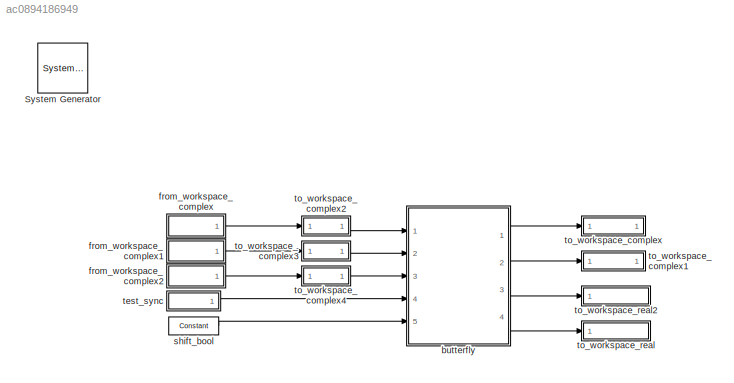
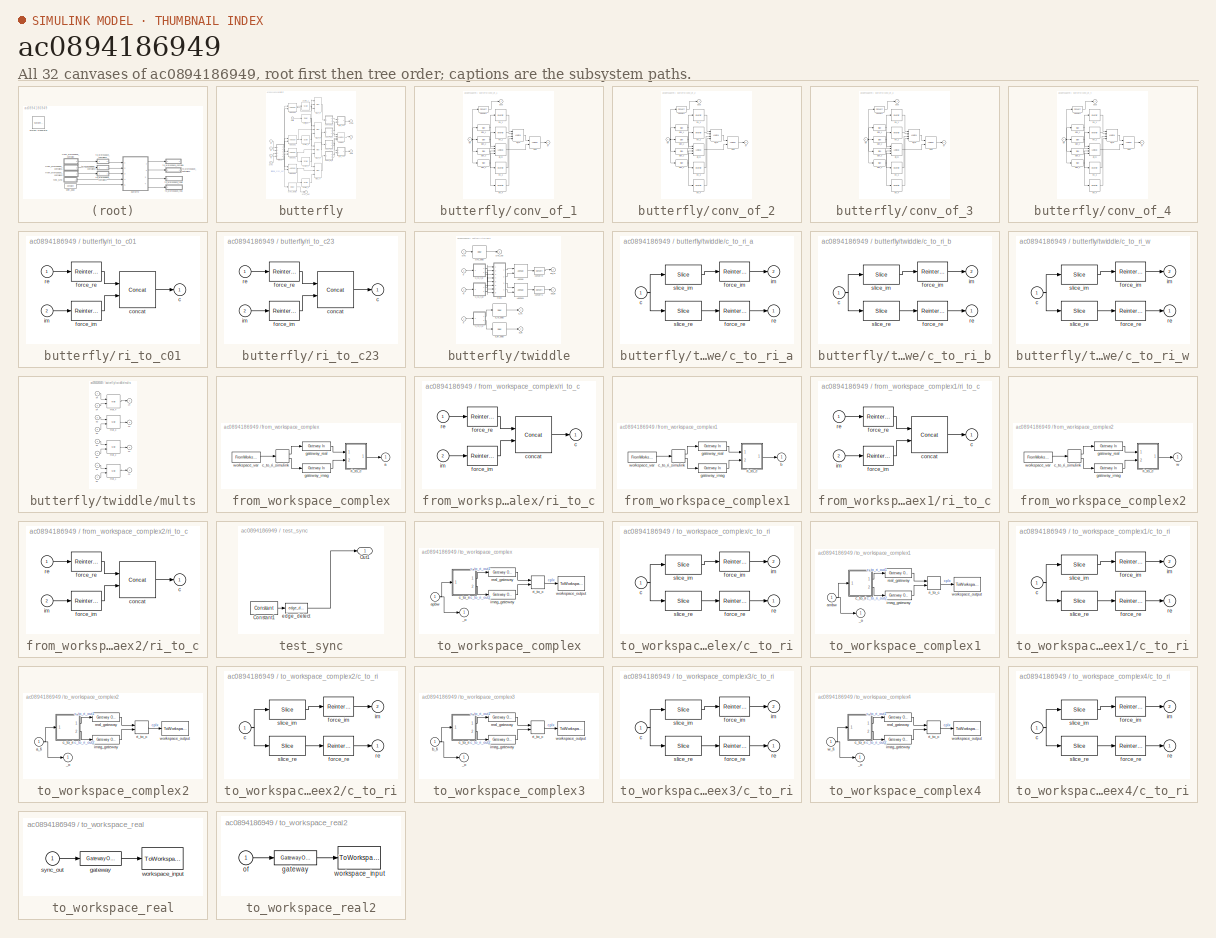
[diagram: thumbnail index - all 32 canvases of the model, root first then tree order]
MODEL slx_ac0894186949
KIND model
BLOCK [Reference]  System Generator  REF=xbsIndex_r4/ System Generator
  AttributesFormatString = System\nGenerator
  Impl_file = ISE Defaults
  Ports = []
  SourceBlock = xbsIndex_r4/ System Generator
  SourceType = Xilinx System Generator Block
  Synth_file = XST Defaults
  Tag = genX
  UserDataPersistent = on
  block_type = sysgen
  clock_wrapper = Clock Enables
  core_generation = According to Block Masks
  dbl_ovrd = According to Block Masks
  dcm_input_clock_period = 10
  deprecated_control = off
  directory = ./netlist
  eval_field = 0
  has_advanced_control = 0
  incr_netlist = off
  infoedit = System Generator
  package = fbg676
  part = xc7k325t
  proj_type = Project Navigator
  run_coregen = off
  sg_icon_stat = 50,50,0,0,token,white,0,58c5b5770fe5f7c311f53dbc6e73f0f6,right,,[ ],[ ]
  sg_mask_display = fprintf('','COMMENT: begin icon graphics');\npatch([0 50 50 0 0 ],[0 0 50 50 0 ],[1 1 1 ]);\npatch([1.6375 16.81 27.31 37.81 48.31 27.31 12.1375 1.6375 ],[36.655 36.655 47.155 36.655 47.155 47.155 47.155 36.655 ],[0.933333 0.203922 0.141176 ]);\npatch([12.1375 27.31 16.81 1.6375 12.1375 ],[26.155 26.155 36.655 36.655 26.155 ],[0.698039 0.0313725 0.219608 ]);\npatch([1.6375 16.81 27.31 12.1375 1.6375 ]...<+327ch>
  sggui_pos = -1,-1,-1,-1
  simulink_period = 1
  speed = -3
  synthesis_tool = XST
  sysclk_period = 10
  testbench = off
  trim_vbits = Everywhere in SubSystem
  xilinxfamily = Kintex7
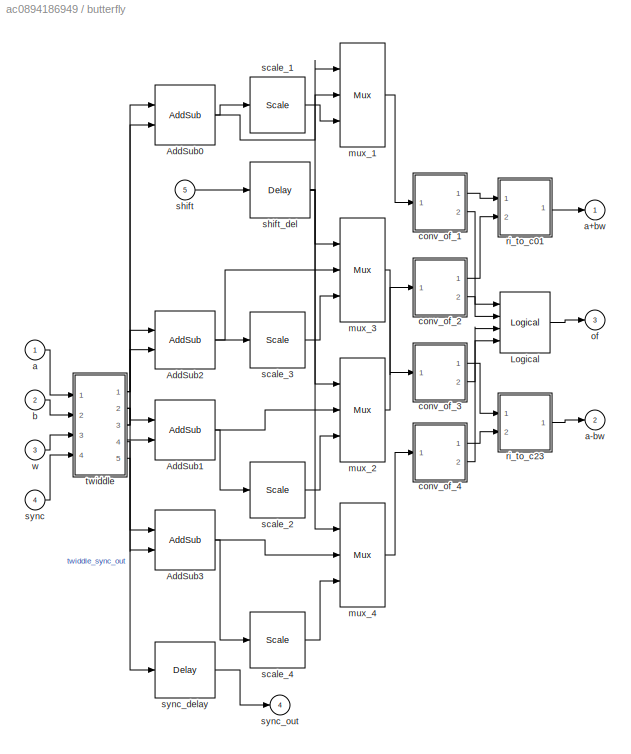
BLOCK [SubSystem] butterfly
  AttributesFormatString = twiddle_general_4mult\ncoeffs in slices\nBit growth:0
  FunctionWithSeparateData = off
  MaskHideContents = off
  MinAlgLoopOccurrences = off
  Opaque = off
  Ports = [5, 4]
  PropExecContextOutsideSubsystem = off
  RTWSystemCode = Auto
  RequestExecContextInheritance = off
BLOCK [Reference] butterfly/AddSub0  REF=xbsIndex_r4/AddSub
  Ports = [2, 1]
  SourceBlock = xbsIndex_r4/AddSub
  SourceType = Xilinx Adder/Subtracter Block
  arith_type = Unsigned
  bin_pt = 14
  block_type = addsub
  dbl_ovrd = off
  en = off
  has_advanced_control = 0
  hw_selection = Fabric
  latency = 1
  mode = Addition
  n_bits = 16
  overflow = Wrap
  pipelined = off
  precision = Full
  quantization = Truncate
  sg_icon_stat = 60,60,2,1,white,blue,0,e85d8a90,right,,[ ],[ ]
  sg_mask_display = fprintf('','COMMENT: begin icon graphics');\npatch([0 60 60 0 0 ],[0 0 60 60 0 ],[0.77 0.82 0.91 ]);\nplot([0 60 60 0 0 ],[0 0 60 60 0 ]);\npatch([12.2 23.76 31.76 39.76 47.76 31.76 20.2 12.2 ],[38.88 38.88 46.88 38.88 46.88 46.88 46.88 38.88 ],[1 1 1 ]);\npatch([20.2 31.76 23.76 12.2 20.2 ],[30.88 30.88 38.88 38.88 30.88 ],[0.931 0.946 0.973 ]);\npatch([12.2 23.76 31.76 20.2 12.2 ],[22.88 22.88 30.88 ...<+520ch>  <repeated x5 — deduplicated; at blocks: AddSub0, AddSub1, AddSub3, AddSub>
  sggui_pos = -1,-1,-1,-1
  use_behavioral_HDL = on
  use_carryin = off
  use_carryout = off
  xl_area = [0,0,0,0,0,0,0]
  xl_use_area = off
BLOCK [Reference] butterfly/AddSub1  REF=xbsIndex_r4/AddSub
  Ports = [2, 1]
  SourceBlock = xbsIndex_r4/AddSub
  SourceType = Xilinx Adder/Subtracter Block
  arith_type = Unsigned
  bin_pt = 14
  block_type = addsub
  dbl_ovrd = off
  en = off
  has_advanced_control = 0
  hw_selection = Fabric
  latency = 1
  mode = Addition
  n_bits = 16
  overflow = Wrap
  pipelined = off
  precision = Full
  quantization = Truncate
  sg_icon_stat = 60,60,2,1,white,blue,0,e85d8a90,right,,[ ],[ ]
  sggui_pos = -1,-1,-1,-1
  use_behavioral_HDL = on
  use_carryin = off
  use_carryout = off
  xl_area = [0,0,0,0,0,0,0]
  xl_use_area = off
BLOCK [Reference] butterfly/AddSub2  REF=xbsIndex_r4/AddSub
  Ports = [2, 1]
  SourceBlock = xbsIndex_r4/AddSub
  SourceType = Xilinx Adder/Subtracter Block
  arith_type = Unsigned
  bin_pt = 14
  block_type = addsub
  dbl_ovrd = off
  en = off
  has_advanced_control = 0
  hw_selection = Fabric
  latency = 1
  mode = Subtraction
  n_bits = 16
  overflow = Wrap
  pipelined = off
  precision = Full
  quantization = Truncate
  sg_icon_stat = 60,58,2,1,white,blue,0,8a00a986,right,,[ ],[ ]
  sg_mask_display = fprintf('','COMMENT: begin icon graphics');\npatch([0 60 60 0 0 ],[0 0 58 58 0 ],[0.77 0.82 0.91 ]);\nplot([0 60 60 0 0 ],[0 0 58 58 0 ]);\npatch([12.2 23.76 31.76 39.76 47.76 31.76 20.2 12.2 ],[37.88 37.88 45.88 37.88 45.88 45.88 45.88 37.88 ],[1 1 1 ]);\npatch([20.2 31.76 23.76 12.2 20.2 ],[29.88 29.88 37.88 37.88 29.88 ],[0.931 0.946 0.973 ]);\npatch([12.2 23.76 31.76 20.2 12.2 ],[21.88 21.88 29.88 ...<+520ch>
  sggui_pos = -1,-1,-1,-1
  use_behavioral_HDL = on
  use_carryin = off
  use_carryout = off
  xl_area = [0,0,0,0,0,0,0]
  xl_use_area = off
BLOCK [Reference] butterfly/AddSub3  REF=xbsIndex_r4/AddSub
  Ports = [2, 1]
  SourceBlock = xbsIndex_r4/AddSub
  SourceType = Xilinx Adder/Subtracter Block
  arith_type = Unsigned
  bin_pt = 14
  block_type = addsub
  dbl_ovrd = off
  en = off
  has_advanced_control = 0
  hw_selection = Fabric
  latency = 1
  mode = Subtraction
  n_bits = 16
  overflow = Wrap
  pipelined = off
  precision = Full
  quantization = Truncate
  sg_icon_stat = 60,60,2,1,white,blue,0,8a00a986,right,,[ ],[ ]
  sggui_pos = -1,-1,-1,-1
  use_behavioral_HDL = on
  use_carryin = off
  use_carryout = off
  xl_area = [0,0,0,0,0,0,0]
  xl_use_area = off
BLOCK [Reference] butterfly/Logical  REF=xbsIndex_r4/Logical
  Ports = [4, 1]
  SourceBlock = xbsIndex_r4/Logical
  SourceType = Xilinx Logical Block Block
  align_bp = on
  arith_type = Unsigned
  bin_pt = 0
  block_type = logical
  dbl_ovrd = off
  en = off
  has_advanced_control = 0
  inputs = 4
  latency = 0
  logical_function = OR
  n_bits = 16
  precision = Full
  sg_icon_stat = 50,61,4,1,white,blue,0,4f3eee2e,right,,[ ],[ ]
  sg_mask_display = fprintf('','COMMENT: begin icon graphics');\npatch([0 50 50 0 0 ],[0 0 61 61 0 ],[0.77 0.82 0.91 ]);\nplot([0 50 50 0 0 ],[0 0 61 61 0 ]);\npatch([9.425 19.54 26.54 33.54 40.54 26.54 16.425 9.425 ],[37.77 37.77 44.77 37.77 44.77 44.77 44.77 37.77 ],[1 1 1 ]);\npatch([16.425 26.54 19.54 9.425 16.425 ],[30.77 30.77 37.77 37.77 30.77 ],[0.931 0.946 0.973 ]);\npatch([9.425 19.54 26.54 16.425 9.425 ],[23.77...<+310ch>
  sggui_pos = -1,-1,-1,-1
  xl_area = [0,0,0,0,0,0,0]
  xl_use_area = off
BLOCK [Inport] butterfly/a
  IconDisplay = Port number
BLOCK [Outport] butterfly/a+bw
  IconDisplay = Port number
BLOCK [Outport] butterfly/a-bw
  IconDisplay = Port number
  Port = 2
BLOCK [Inport] butterfly/b
  IconDisplay = Port number
  Port = 2
BLOCK [SubSystem] butterfly/conv_of_1
  AttributesFormatString = [24,20]->[18,17]
  FunctionWithSeparateData = off
  MaskHideContents = off
  MinAlgLoopOccurrences = off
  Opaque = off
  Ports = [1, 2]
  PropExecContextOutsideSubsystem = off
  RTWSystemCode = Auto
  RequestExecContextInheritance = off
BLOCK [Reference] butterfly/conv_of_1/all_0s  REF=xbsIndex_r4/Logical
  Ports = [4, 1]
  SourceBlock = xbsIndex_r4/Logical
  SourceType = Xilinx Logical Block Block
  align_bp = on
  arith_type = Unsigned
  bin_pt = 0
  block_type = logical
  dbl_ovrd = off
  en = off
  has_advanced_control = 0
  inputs = 4
  latency = 1
  logical_function = NAND
  n_bits = 16
  precision = Full
  sg_icon_stat = 55,61,4,1,white,blue,0,179a3c8b,right,,[ ],[ ]
  sg_mask_display = fprintf('','COMMENT: begin icon graphics');\npatch([0 55 55 0 0 ],[0 0 61 61 0 ],[0.77 0.82 0.91 ]);\nplot([0 55 55 0 0 ],[0 0 61 61 0 ]);\npatch([11.425 21.54 28.54 35.54 42.54 28.54 18.425 11.425 ],[37.77 37.77 44.77 37.77 44.77 44.77 44.77 37.77 ],[1 1 1 ]);\npatch([18.425 28.54 21.54 11.425 18.425 ],[30.77 30.77 37.77 37.77 30.77 ],[0.931 0.946 0.973 ]);\npatch([11.425 21.54 28.54 18.425 11.425 ],[...<+376ch>  <repeated x8 — deduplicated; at blocks: all_0s, all_1s>
  sggui_pos = -1,-1,-1,-1
  xl_area = [0,0,0,0,0,0,0]
  xl_use_area = off
BLOCK [Reference] butterfly/conv_of_1/all_1s  REF=xbsIndex_r4/Logical
  Ports = [4, 1]
  SourceBlock = xbsIndex_r4/Logical
  SourceType = Xilinx Logical Block Block
  align_bp = on
  arith_type = Unsigned
  bin_pt = 0
  block_type = logical
  dbl_ovrd = off
  en = off
  has_advanced_control = 0
  inputs = 4
  latency = 1
  logical_function = NAND
  n_bits = 16
  precision = Full
  sg_icon_stat = 55,61,4,1,white,blue,0,179a3c8b,right,,[ ],[ ]
  sggui_pos = -1,-1,-1,-1
  xl_area = [0,0,0,0,0,0,0]
  xl_use_area = off
BLOCK [Reference] butterfly/conv_of_1/and  REF=xbsIndex_r4/Logical
  Ports = [2, 1]
  SourceBlock = xbsIndex_r4/Logical
  SourceType = Xilinx Logical Block Block
  align_bp = on
  arith_type = Unsigned
  bin_pt = 0
  block_type = logical
  dbl_ovrd = off
  en = off
  has_advanced_control = 0
  inputs = 2
  latency = 0
  logical_function = AND
  n_bits = 16
  precision = Full
  sg_icon_stat = 55,60,2,1,white,blue,0,83a4b621,right,,[ ],[ ]
  sg_mask_display = fprintf('','COMMENT: begin icon graphics');\npatch([0 55 55 0 0 ],[0 0 60 60 0 ],[0.77 0.82 0.91 ]);\nplot([0 55 55 0 0 ],[0 0 60 60 0 ]);\npatch([11.425 21.54 28.54 35.54 42.54 28.54 18.425 11.425 ],[37.77 37.77 44.77 37.77 44.77 44.77 44.77 37.77 ],[1 1 1 ]);\npatch([18.425 28.54 21.54 11.425 18.425 ],[30.77 30.77 37.77 37.77 30.77 ],[0.931 0.946 0.973 ]);\npatch([11.425 21.54 28.54 18.425 11.425 ],[...<+315ch>  <repeated x4 — deduplicated; at blocks: and>
  sggui_pos = -1,-1,-1,-1
  xl_area = [0,0,0,0,0,0,0]
  xl_use_area = off
BLOCK [Reference] butterfly/conv_of_1/convert  REF=xbsIndex_r4/Convert
  Ports = [1, 1]
  SourceBlock = xbsIndex_r4/Convert
  SourceType = Xilinx Type Converter Block
  arith_type = Signed  (2's comp)
  bin_pt = 17
  block_type = convert
  dbl_ovrd = off
  en = off
  exp_bits = 8
  float_type = Single
  fraction_bits = 24
  gui_display_data_type = Fixed-point
  has_advanced_control = 0
  infoedit = Hardware notes: rounding and saturating require hardware resources; truncating and wrapping do not.
  latency = 1
  n_bits = 18
  overflow = Wrap
  pipeline = on
  quantization = Round  (unbiased: +/- Inf)
  sg_icon_stat = 50,30,1,1,white,blue,0,0c6bad53,right,,[ ],[ ]
  sg_mask_display = fprintf('','COMMENT: begin icon graphics');\npatch([0 50 50 0 0 ],[0 0 30 30 0 ],[0.77 0.82 0.91 ]);\nplot([0 50 50 0 0 ],[0 0 30 30 0 ]);\npatch([16.1 21.88 25.88 29.88 33.88 25.88 20.1 16.1 ],[19.44 19.44 23.44 19.44 23.44 23.44 23.44 19.44 ],[1 1 1 ]);\npatch([20.1 25.88 21.88 16.1 20.1 ],[15.44 15.44 19.44 19.44 15.44 ],[0.931 0.946 0.973 ]);\npatch([16.1 21.88 25.88 20.1 16.1 ],[11.44 11.44 15.44 ...<+387ch>  <repeated x4 — deduplicated; at blocks: convert>
  sggui_pos = -1,-1,-1,-1
  xl_area = [0,0,0,0,0,0,0]
  xl_use_area = off
BLOCK [Inport] butterfly/conv_of_1/din
  IconDisplay = Port number
BLOCK [Outport] butterfly/conv_of_1/dout
  IconDisplay = Port number
BLOCK [Reference] butterfly/conv_of_1/inv_1  REF=xbsIndex_r4/Inverter
  Ports = [1, 1]
  SourceBlock = xbsIndex_r4/Inverter
  SourceType = Xilinx Inverter Block
  block_type = inv
  dbl_ovrd = off
  en = off
  has_advanced_control = 0
  infoedit = Bitwise logical negation (one's complement) operator.
  latency = 0
  sg_icon_stat = 55,60,1,1,white,blue,0,267846e5,right,,[ ],[ ]
  sg_mask_display = fprintf('','COMMENT: begin icon graphics');\npatch([0 55 55 0 0 ],[0 0 60 60 0 ],[0.77 0.82 0.91 ]);\nplot([0 55 55 0 0 ],[0 0 60 60 0 ]);\npatch([11.425 21.54 28.54 35.54 42.54 28.54 18.425 11.425 ],[37.77 37.77 44.77 37.77 44.77 44.77 44.77 37.77 ],[1 1 1 ]);\npatch([18.425 28.54 21.54 11.425 18.425 ],[30.77 30.77 37.77 37.77 30.77 ],[0.931 0.946 0.973 ]);\npatch([11.425 21.54 28.54 18.425 11.425 ],[...<+314ch>  <repeated x12 — deduplicated; at blocks: inv_1, inv_3, inv_4>
  sggui_pos = -1,-1,-1,-1
  xl_area = [0,0,0,0,0,0,0]
  xl_use_area = off
BLOCK [Reference] butterfly/conv_of_1/inv_2  REF=xbsIndex_r4/Inverter
  Ports = [1, 1]
  SourceBlock = xbsIndex_r4/Inverter
  SourceType = Xilinx Inverter Block
  block_type = inv
  dbl_ovrd = off
  en = off
  has_advanced_control = 0
  infoedit = Bitwise logical negation (one's complement) operator.
  latency = 0
  sg_icon_stat = 55,58,1,1,white,blue,0,267846e5,right,,[ ],[ ]
  sg_mask_display = fprintf('','COMMENT: begin icon graphics');\npatch([0 55 55 0 0 ],[0 0 58 58 0 ],[0.77 0.82 0.91 ]);\nplot([0 55 55 0 0 ],[0 0 58 58 0 ]);\npatch([11.425 21.54 28.54 35.54 42.54 28.54 18.425 11.425 ],[36.77 36.77 43.77 36.77 43.77 43.77 43.77 36.77 ],[1 1 1 ]);\npatch([18.425 28.54 21.54 11.425 18.425 ],[29.77 29.77 36.77 36.77 29.77 ],[0.931 0.946 0.973 ]);\npatch([11.425 21.54 28.54 18.425 11.425 ],[...<+314ch>  <repeated x4 — deduplicated; at blocks: inv_2>
  sggui_pos = -1,-1,-1,-1
  xl_area = [0,0,0,0,0,0,0]
  xl_use_area = off
BLOCK [Reference] butterfly/conv_of_1/inv_3  REF=xbsIndex_r4/Inverter
  Ports = [1, 1]
  SourceBlock = xbsIndex_r4/Inverter
  SourceType = Xilinx Inverter Block
  block_type = inv
  dbl_ovrd = off
  en = off
  has_advanced_control = 0
  infoedit = Bitwise logical negation (one's complement) operator.
  latency = 0
  sg_icon_stat = 55,60,1,1,white,blue,0,267846e5,right,,[ ],[ ]
  sggui_pos = -1,-1,-1,-1
  xl_area = [0,0,0,0,0,0,0]
  xl_use_area = off
BLOCK [Reference] butterfly/conv_of_1/inv_4  REF=xbsIndex_r4/Inverter
  Ports = [1, 1]
  SourceBlock = xbsIndex_r4/Inverter
  SourceType = Xilinx Inverter Block
  block_type = inv
  dbl_ovrd = off
  en = off
  has_advanced_control = 0
  infoedit = Bitwise logical negation (one's complement) operator.
  latency = 0
  sg_icon_stat = 55,60,1,1,white,blue,0,267846e5,right,,[ ],[ ]
  sggui_pos = -1,-1,-1,-1
  xl_area = [0,0,0,0,0,0,0]
  xl_use_area = off
BLOCK [Outport] butterfly/conv_of_1/of
  IconDisplay = Port number
  Port = 2
BLOCK [Reference] butterfly/conv_of_1/slice_1  REF=xbsIndex_r4/Slice
  Ports = [1, 1]
  SourceBlock = xbsIndex_r4/Slice
  SourceType = Xilinx Bit Slice Extractor Block
  base0 = LSB of Input
  base1 = MSB of Input
  bit0 = 0
  bit1 = 0
  block_type = slice
  boolean_output = on
  dbl_ovrd = off
  has_advanced_control = 0
  infoedit = Extracts a given range of bits from each input sample and presents it at the output.  The output type is ordinarily unsigned with binary point at zero, but can be Boolean when the slice is one bit wide.<br><br>Hardware notes: In hardware this block costs nothing.  <repeated x32 — deduplicated; at blocks: slice_1, slice_2, slice_3, slice_4, slice_im, slice_re>
  mode = Upper Bit Location + Width
  nbits = 1
  sg_icon_stat = 60,32,1,1,white,blue,0,1fd851a7,right,,[ ],[ ]
  sg_mask_display = fprintf('','COMMENT: begin icon graphics');\npatch([0 60 60 0 0 ],[0 0 32 32 0 ],[0.77 0.82 0.91 ]);\nplot([0 60 60 0 0 ],[0 0 32 32 0 ]);\npatch([21.1 26.88 30.88 34.88 38.88 30.88 25.1 21.1 ],[20.44 20.44 24.44 20.44 24.44 24.44 24.44 20.44 ],[1 1 1 ]);\npatch([25.1 30.88 26.88 21.1 25.1 ],[16.44 16.44 20.44 20.44 16.44 ],[0.931 0.946 0.973 ]);\npatch([21.1 26.88 30.88 25.1 21.1 ],[12.44 12.44 16.44 ...<+304ch>  <repeated x22 — deduplicated; at blocks: slice_1, slice_2, slice_3, slice_4, slice_im, slice_re>
  sggui_pos = -1,-1,-1,-1
BLOCK [Reference] butterfly/conv_of_1/slice_2  REF=xbsIndex_r4/Slice
  Ports = [1, 1]
  SourceBlock = xbsIndex_r4/Slice
  SourceType = Xilinx Bit Slice Extractor Block
  base0 = LSB of Input
  base1 = MSB of Input
  bit0 = 0
  bit1 = -1
  block_type = slice
  boolean_output = on
  dbl_ovrd = off
  has_advanced_control = 0
  mode = Upper Bit Location + Width
  nbits = 1
  sg_icon_stat = 60,32,1,1,white,blue,0,1fd851a7,right,,[ ],[ ]
  sggui_pos = -1,-1,-1,-1
BLOCK [Reference] butterfly/conv_of_1/slice_3  REF=xbsIndex_r4/Slice
  Ports = [1, 1]
  SourceBlock = xbsIndex_r4/Slice
  SourceType = Xilinx Bit Slice Extractor Block
  base0 = LSB of Input
  base1 = MSB of Input
  bit0 = 0
  bit1 = -2
  block_type = slice
  boolean_output = on
  dbl_ovrd = off
  has_advanced_control = 0
  mode = Upper Bit Location + Width
  nbits = 1
  sg_icon_stat = 60,32,1,1,white,blue,0,1fd851a7,right,,[ ],[ ]
  sggui_pos = -1,-1,-1,-1
BLOCK [Reference] butterfly/conv_of_1/slice_4  REF=xbsIndex_r4/Slice
  Ports = [1, 1]
  SourceBlock = xbsIndex_r4/Slice
  SourceType = Xilinx Bit Slice Extractor Block
  base0 = LSB of Input
  base1 = MSB of Input
  bit0 = 0
  bit1 = -3
  block_type = slice
  boolean_output = on
  dbl_ovrd = off
  has_advanced_control = 0
  mode = Upper Bit Location + Width
  nbits = 1
  sg_icon_stat = 60,32,1,1,white,blue,0,1fd851a7,right,,[ ],[ ]
  sggui_pos = -1,-1,-1,-1
BLOCK [SubSystem] butterfly/conv_of_2
  AttributesFormatString = [24,20]->[18,17]
  FunctionWithSeparateData = off
  MaskHideContents = off
  MinAlgLoopOccurrences = off
  Opaque = off
  Ports = [1, 2]
  PropExecContextOutsideSubsystem = off
  RTWSystemCode = Auto
  RequestExecContextInheritance = off
BLOCK [Reference] butterfly/conv_of_2/all_0s  REF=xbsIndex_r4/Logical
  Ports = [4, 1]
  SourceBlock = xbsIndex_r4/Logical
  SourceType = Xilinx Logical Block Block
  align_bp = on
  arith_type = Unsigned
  bin_pt = 0
  block_type = logical
  dbl_ovrd = off
  en = off
  has_advanced_control = 0
  inputs = 4
  latency = 1
  logical_function = NAND
  n_bits = 16
  precision = Full
  sg_icon_stat = 55,61,4,1,white,blue,0,179a3c8b,right,,[ ],[ ]
  sggui_pos = -1,-1,-1,-1
  xl_area = [0,0,0,0,0,0,0]
  xl_use_area = off
BLOCK [Reference] butterfly/conv_of_2/all_1s  REF=xbsIndex_r4/Logical
  Ports = [4, 1]
  SourceBlock = xbsIndex_r4/Logical
  SourceType = Xilinx Logical Block Block
  align_bp = on
  arith_type = Unsigned
  bin_pt = 0
  block_type = logical
  dbl_ovrd = off
  en = off
  has_advanced_control = 0
  inputs = 4
  latency = 1
  logical_function = NAND
  n_bits = 16
  precision = Full
  sg_icon_stat = 55,61,4,1,white,blue,0,179a3c8b,right,,[ ],[ ]
  sggui_pos = -1,-1,-1,-1
  xl_area = [0,0,0,0,0,0,0]
  xl_use_area = off
BLOCK [Reference] butterfly/conv_of_2/and  REF=xbsIndex_r4/Logical
  Ports = [2, 1]
  SourceBlock = xbsIndex_r4/Logical
  SourceType = Xilinx Logical Block Block
  align_bp = on
  arith_type = Unsigned
  bin_pt = 0
  block_type = logical
  dbl_ovrd = off
  en = off
  has_advanced_control = 0
  inputs = 2
  latency = 0
  logical_function = AND
  n_bits = 16
  precision = Full
  sg_icon_stat = 55,60,2,1,white,blue,0,83a4b621,right,,[ ],[ ]
  sggui_pos = -1,-1,-1,-1
  xl_area = [0,0,0,0,0,0,0]
  xl_use_area = off
BLOCK [Reference] butterfly/conv_of_2/convert  REF=xbsIndex_r4/Convert
  Ports = [1, 1]
  SourceBlock = xbsIndex_r4/Convert
  SourceType = Xilinx Type Converter Block
  arith_type = Signed  (2's comp)
  bin_pt = 17
  block_type = convert
  dbl_ovrd = off
  en = off
  exp_bits = 8
  float_type = Single
  fraction_bits = 24
  gui_display_data_type = Fixed-point
  has_advanced_control = 0
  infoedit = Hardware notes: rounding and saturating require hardware resources; truncating and wrapping do not.
  latency = 1
  n_bits = 18
  overflow = Wrap
  pipeline = on
  quantization = Round  (unbiased: +/- Inf)
  sg_icon_stat = 50,30,1,1,white,blue,0,0c6bad53,right,,[ ],[ ]
  sggui_pos = -1,-1,-1,-1
  xl_area = [0,0,0,0,0,0,0]
  xl_use_area = off
BLOCK [Inport] butterfly/conv_of_2/din
  IconDisplay = Port number
BLOCK [Outport] butterfly/conv_of_2/dout
  IconDisplay = Port number
BLOCK [Reference] butterfly/conv_of_2/inv_1  REF=xbsIndex_r4/Inverter
  Ports = [1, 1]
  SourceBlock = xbsIndex_r4/Inverter
  SourceType = Xilinx Inverter Block
  block_type = inv
  dbl_ovrd = off
  en = off
  has_advanced_control = 0
  infoedit = Bitwise logical negation (one's complement) operator.
  latency = 0
  sg_icon_stat = 55,60,1,1,white,blue,0,267846e5,right,,[ ],[ ]
  sggui_pos = -1,-1,-1,-1
  xl_area = [0,0,0,0,0,0,0]
  xl_use_area = off
BLOCK [Reference] butterfly/conv_of_2/inv_2  REF=xbsIndex_r4/Inverter
  Ports = [1, 1]
  SourceBlock = xbsIndex_r4/Inverter
  SourceType = Xilinx Inverter Block
  block_type = inv
  dbl_ovrd = off
  en = off
  has_advanced_control = 0
  infoedit = Bitwise logical negation (one's complement) operator.
  latency = 0
  sg_icon_stat = 55,58,1,1,white,blue,0,267846e5,right,,[ ],[ ]
  sggui_pos = -1,-1,-1,-1
  xl_area = [0,0,0,0,0,0,0]
  xl_use_area = off
BLOCK [Reference] butterfly/conv_of_2/inv_3  REF=xbsIndex_r4/Inverter
  Ports = [1, 1]
  SourceBlock = xbsIndex_r4/Inverter
  SourceType = Xilinx Inverter Block
  block_type = inv
  dbl_ovrd = off
  en = off
  has_advanced_control = 0
  infoedit = Bitwise logical negation (one's complement) operator.
  latency = 0
  sg_icon_stat = 55,60,1,1,white,blue,0,267846e5,right,,[ ],[ ]
  sggui_pos = -1,-1,-1,-1
  xl_area = [0,0,0,0,0,0,0]
  xl_use_area = off
BLOCK [Reference] butterfly/conv_of_2/inv_4  REF=xbsIndex_r4/Inverter
  Ports = [1, 1]
  SourceBlock = xbsIndex_r4/Inverter
  SourceType = Xilinx Inverter Block
  block_type = inv
  dbl_ovrd = off
  en = off
  has_advanced_control = 0
  infoedit = Bitwise logical negation (one's complement) operator.
  latency = 0
  sg_icon_stat = 55,60,1,1,white,blue,0,267846e5,right,,[ ],[ ]
  sggui_pos = -1,-1,-1,-1
  xl_area = [0,0,0,0,0,0,0]
  xl_use_area = off
BLOCK [Outport] butterfly/conv_of_2/of
  IconDisplay = Port number
  Port = 2
BLOCK [Reference] butterfly/conv_of_2/slice_1  REF=xbsIndex_r4/Slice
  Ports = [1, 1]
  SourceBlock = xbsIndex_r4/Slice
  SourceType = Xilinx Bit Slice Extractor Block
  base0 = LSB of Input
  base1 = MSB of Input
  bit0 = 0
  bit1 = 0
  block_type = slice
  boolean_output = on
  dbl_ovrd = off
  has_advanced_control = 0
  mode = Upper Bit Location + Width
  nbits = 1
  sg_icon_stat = 60,32,1,1,white,blue,0,1fd851a7,right,,[ ],[ ]
  sggui_pos = -1,-1,-1,-1
BLOCK [Reference] butterfly/conv_of_2/slice_2  REF=xbsIndex_r4/Slice
  Ports = [1, 1]
  SourceBlock = xbsIndex_r4/Slice
  SourceType = Xilinx Bit Slice Extractor Block
  base0 = LSB of Input
  base1 = MSB of Input
  bit0 = 0
  bit1 = -1
  block_type = slice
  boolean_output = on
  dbl_ovrd = off
  has_advanced_control = 0
  mode = Upper Bit Location + Width
  nbits = 1
  sg_icon_stat = 60,32,1,1,white,blue,0,1fd851a7,right,,[ ],[ ]
  sggui_pos = -1,-1,-1,-1
BLOCK [Reference] butterfly/conv_of_2/slice_3  REF=xbsIndex_r4/Slice
  Ports = [1, 1]
  SourceBlock = xbsIndex_r4/Slice
  SourceType = Xilinx Bit Slice Extractor Block
  base0 = LSB of Input
  base1 = MSB of Input
  bit0 = 0
  bit1 = -2
  block_type = slice
  boolean_output = on
  dbl_ovrd = off
  has_advanced_control = 0
  mode = Upper Bit Location + Width
  nbits = 1
  sg_icon_stat = 60,32,1,1,white,blue,0,1fd851a7,right,,[ ],[ ]
  sggui_pos = -1,-1,-1,-1
BLOCK [Reference] butterfly/conv_of_2/slice_4  REF=xbsIndex_r4/Slice
  Ports = [1, 1]
  SourceBlock = xbsIndex_r4/Slice
  SourceType = Xilinx Bit Slice Extractor Block
  base0 = LSB of Input
  base1 = MSB of Input
  bit0 = 0
  bit1 = -3
  block_type = slice
  boolean_output = on
  dbl_ovrd = off
  has_advanced_control = 0
  mode = Upper Bit Location + Width
  nbits = 1
  sg_icon_stat = 60,32,1,1,white,blue,0,1fd851a7,right,,[ ],[ ]
  sggui_pos = -1,-1,-1,-1
BLOCK [SubSystem] butterfly/conv_of_3
  AttributesFormatString = [24,20]->[18,17]
  FunctionWithSeparateData = off
  MaskHideContents = off
  MinAlgLoopOccurrences = off
  Opaque = off
  Ports = [1, 2]
  PropExecContextOutsideSubsystem = off
  RTWSystemCode = Auto
  RequestExecContextInheritance = off
BLOCK [Reference] butterfly/conv_of_3/all_0s  REF=xbsIndex_r4/Logical
  Ports = [4, 1]
  SourceBlock = xbsIndex_r4/Logical
  SourceType = Xilinx Logical Block Block
  align_bp = on
  arith_type = Unsigned
  bin_pt = 0
  block_type = logical
  dbl_ovrd = off
  en = off
  has_advanced_control = 0
  inputs = 4
  latency = 1
  logical_function = NAND
  n_bits = 16
  precision = Full
  sg_icon_stat = 55,61,4,1,white,blue,0,179a3c8b,right,,[ ],[ ]
  sggui_pos = -1,-1,-1,-1
  xl_area = [0,0,0,0,0,0,0]
  xl_use_area = off
BLOCK [Reference] butterfly/conv_of_3/all_1s  REF=xbsIndex_r4/Logical
  Ports = [4, 1]
  SourceBlock = xbsIndex_r4/Logical
  SourceType = Xilinx Logical Block Block
  align_bp = on
  arith_type = Unsigned
  bin_pt = 0
  block_type = logical
  dbl_ovrd = off
  en = off
  has_advanced_control = 0
  inputs = 4
  latency = 1
  logical_function = NAND
  n_bits = 16
  precision = Full
  sg_icon_stat = 55,61,4,1,white,blue,0,179a3c8b,right,,[ ],[ ]
  sggui_pos = -1,-1,-1,-1
  xl_area = [0,0,0,0,0,0,0]
  xl_use_area = off
BLOCK [Reference] butterfly/conv_of_3/and  REF=xbsIndex_r4/Logical
  Ports = [2, 1]
  SourceBlock = xbsIndex_r4/Logical
  SourceType = Xilinx Logical Block Block
  align_bp = on
  arith_type = Unsigned
  bin_pt = 0
  block_type = logical
  dbl_ovrd = off
  en = off
  has_advanced_control = 0
  inputs = 2
  latency = 0
  logical_function = AND
  n_bits = 16
  precision = Full
  sg_icon_stat = 55,60,2,1,white,blue,0,83a4b621,right,,[ ],[ ]
  sggui_pos = -1,-1,-1,-1
  xl_area = [0,0,0,0,0,0,0]
  xl_use_area = off
BLOCK [Reference] butterfly/conv_of_3/convert  REF=xbsIndex_r4/Convert
  Ports = [1, 1]
  SourceBlock = xbsIndex_r4/Convert
  SourceType = Xilinx Type Converter Block
  arith_type = Signed  (2's comp)
  bin_pt = 17
  block_type = convert
  dbl_ovrd = off
  en = off
  exp_bits = 8
  float_type = Single
  fraction_bits = 24
  gui_display_data_type = Fixed-point
  has_advanced_control = 0
  infoedit = Hardware notes: rounding and saturating require hardware resources; truncating and wrapping do not.
  latency = 1
  n_bits = 18
  overflow = Wrap
  pipeline = on
  quantization = Round  (unbiased: +/- Inf)
  sg_icon_stat = 50,30,1,1,white,blue,0,0c6bad53,right,,[ ],[ ]
  sggui_pos = -1,-1,-1,-1
  xl_area = [0,0,0,0,0,0,0]
  xl_use_area = off
BLOCK [Inport] butterfly/conv_of_3/din
  IconDisplay = Port number
BLOCK [Outport] butterfly/conv_of_3/dout
  IconDisplay = Port number
BLOCK [Reference] butterfly/conv_of_3/inv_1  REF=xbsIndex_r4/Inverter
  Ports = [1, 1]
  SourceBlock = xbsIndex_r4/Inverter
  SourceType = Xilinx Inverter Block
  block_type = inv
  dbl_ovrd = off
  en = off
  has_advanced_control = 0
  infoedit = Bitwise logical negation (one's complement) operator.
  latency = 0
  sg_icon_stat = 55,60,1,1,white,blue,0,267846e5,right,,[ ],[ ]
  sggui_pos = -1,-1,-1,-1
  xl_area = [0,0,0,0,0,0,0]
  xl_use_area = off
BLOCK [Reference] butterfly/conv_of_3/inv_2  REF=xbsIndex_r4/Inverter
  Ports = [1, 1]
  SourceBlock = xbsIndex_r4/Inverter
  SourceType = Xilinx Inverter Block
  block_type = inv
  dbl_ovrd = off
  en = off
  has_advanced_control = 0
  infoedit = Bitwise logical negation (one's complement) operator.
  latency = 0
  sg_icon_stat = 55,58,1,1,white,blue,0,267846e5,right,,[ ],[ ]
  sggui_pos = -1,-1,-1,-1
  xl_area = [0,0,0,0,0,0,0]
  xl_use_area = off
BLOCK [Reference] butterfly/conv_of_3/inv_3  REF=xbsIndex_r4/Inverter
  Ports = [1, 1]
  SourceBlock = xbsIndex_r4/Inverter
  SourceType = Xilinx Inverter Block
  block_type = inv
  dbl_ovrd = off
  en = off
  has_advanced_control = 0
  infoedit = Bitwise logical negation (one's complement) operator.
  latency = 0
  sg_icon_stat = 55,60,1,1,white,blue,0,267846e5,right,,[ ],[ ]
  sggui_pos = -1,-1,-1,-1
  xl_area = [0,0,0,0,0,0,0]
  xl_use_area = off
BLOCK [Reference] butterfly/conv_of_3/inv_4  REF=xbsIndex_r4/Inverter
  Ports = [1, 1]
  SourceBlock = xbsIndex_r4/Inverter
  SourceType = Xilinx Inverter Block
  block_type = inv
  dbl_ovrd = off
  en = off
  has_advanced_control = 0
  infoedit = Bitwise logical negation (one's complement) operator.
  latency = 0
  sg_icon_stat = 55,60,1,1,white,blue,0,267846e5,right,,[ ],[ ]
  sggui_pos = -1,-1,-1,-1
  xl_area = [0,0,0,0,0,0,0]
  xl_use_area = off
BLOCK [Outport] butterfly/conv_of_3/of
  IconDisplay = Port number
  Port = 2
BLOCK [Reference] butterfly/conv_of_3/slice_1  REF=xbsIndex_r4/Slice
  Ports = [1, 1]
  SourceBlock = xbsIndex_r4/Slice
  SourceType = Xilinx Bit Slice Extractor Block
  base0 = LSB of Input
  base1 = MSB of Input
  bit0 = 0
  bit1 = 0
  block_type = slice
  boolean_output = on
  dbl_ovrd = off
  has_advanced_control = 0
  mode = Upper Bit Location + Width
  nbits = 1
  sg_icon_stat = 60,32,1,1,white,blue,0,1fd851a7,right,,[ ],[ ]
  sggui_pos = -1,-1,-1,-1
BLOCK [Reference] butterfly/conv_of_3/slice_2  REF=xbsIndex_r4/Slice
  Ports = [1, 1]
  SourceBlock = xbsIndex_r4/Slice
  SourceType = Xilinx Bit Slice Extractor Block
  base0 = LSB of Input
  base1 = MSB of Input
  bit0 = 0
  bit1 = -1
  block_type = slice
  boolean_output = on
  dbl_ovrd = off
  has_advanced_control = 0
  mode = Upper Bit Location + Width
  nbits = 1
  sg_icon_stat = 60,32,1,1,white,blue,0,1fd851a7,right,,[ ],[ ]
  sggui_pos = -1,-1,-1,-1
BLOCK [Reference] butterfly/conv_of_3/slice_3  REF=xbsIndex_r4/Slice
  Ports = [1, 1]
  SourceBlock = xbsIndex_r4/Slice
  SourceType = Xilinx Bit Slice Extractor Block
  base0 = LSB of Input
  base1 = MSB of Input
  bit0 = 0
  bit1 = -2
  block_type = slice
  boolean_output = on
  dbl_ovrd = off
  has_advanced_control = 0
  mode = Upper Bit Location + Width
  nbits = 1
  sg_icon_stat = 60,32,1,1,white,blue,0,1fd851a7,right,,[ ],[ ]
  sggui_pos = -1,-1,-1,-1
BLOCK [Reference] butterfly/conv_of_3/slice_4  REF=xbsIndex_r4/Slice
  Ports = [1, 1]
  SourceBlock = xbsIndex_r4/Slice
  SourceType = Xilinx Bit Slice Extractor Block
  base0 = LSB of Input
  base1 = MSB of Input
  bit0 = 0
  bit1 = -3
  block_type = slice
  boolean_output = on
  dbl_ovrd = off
  has_advanced_control = 0
  mode = Upper Bit Location + Width
  nbits = 1
  sg_icon_stat = 60,32,1,1,white,blue,0,1fd851a7,right,,[ ],[ ]
  sggui_pos = -1,-1,-1,-1
BLOCK [SubSystem] butterfly/conv_of_4
  AttributesFormatString = [24,20]->[18,17]
  FunctionWithSeparateData = off
  MaskHideContents = off
  MinAlgLoopOccurrences = off
  Opaque = off
  Ports = [1, 2]
  PropExecContextOutsideSubsystem = off
  RTWSystemCode = Auto
  RequestExecContextInheritance = off
BLOCK [Reference] butterfly/conv_of_4/all_0s  REF=xbsIndex_r4/Logical
  Ports = [4, 1]
  SourceBlock = xbsIndex_r4/Logical
  SourceType = Xilinx Logical Block Block
  align_bp = on
  arith_type = Unsigned
  bin_pt = 0
  block_type = logical
  dbl_ovrd = off
  en = off
  has_advanced_control = 0
  inputs = 4
  latency = 1
  logical_function = NAND
  n_bits = 16
  precision = Full
  sg_icon_stat = 55,61,4,1,white,blue,0,179a3c8b,right,,[ ],[ ]
  sggui_pos = -1,-1,-1,-1
  xl_area = [0,0,0,0,0,0,0]
  xl_use_area = off
BLOCK [Reference] butterfly/conv_of_4/all_1s  REF=xbsIndex_r4/Logical
  Ports = [4, 1]
  SourceBlock = xbsIndex_r4/Logical
  SourceType = Xilinx Logical Block Block
  align_bp = on
  arith_type = Unsigned
  bin_pt = 0
  block_type = logical
  dbl_ovrd = off
  en = off
  has_advanced_control = 0
  inputs = 4
  latency = 1
  logical_function = NAND
  n_bits = 16
  precision = Full
  sg_icon_stat = 55,61,4,1,white,blue,0,179a3c8b,right,,[ ],[ ]
  sggui_pos = -1,-1,-1,-1
  xl_area = [0,0,0,0,0,0,0]
  xl_use_area = off
BLOCK [Reference] butterfly/conv_of_4/and  REF=xbsIndex_r4/Logical
  Ports = [2, 1]
  SourceBlock = xbsIndex_r4/Logical
  SourceType = Xilinx Logical Block Block
  align_bp = on
  arith_type = Unsigned
  bin_pt = 0
  block_type = logical
  dbl_ovrd = off
  en = off
  has_advanced_control = 0
  inputs = 2
  latency = 0
  logical_function = AND
  n_bits = 16
  precision = Full
  sg_icon_stat = 55,60,2,1,white,blue,0,83a4b621,right,,[ ],[ ]
  sggui_pos = -1,-1,-1,-1
  xl_area = [0,0,0,0,0,0,0]
  xl_use_area = off
BLOCK [Reference] butterfly/conv_of_4/convert  REF=xbsIndex_r4/Convert
  Ports = [1, 1]
  SourceBlock = xbsIndex_r4/Convert
  SourceType = Xilinx Type Converter Block
  arith_type = Signed  (2's comp)
  bin_pt = 17
  block_type = convert
  dbl_ovrd = off
  en = off
  exp_bits = 8
  float_type = Single
  fraction_bits = 24
  gui_display_data_type = Fixed-point
  has_advanced_control = 0
  infoedit = Hardware notes: rounding and saturating require hardware resources; truncating and wrapping do not.
  latency = 1
  n_bits = 18
  overflow = Wrap
  pipeline = on
  quantization = Round  (unbiased: +/- Inf)
  sg_icon_stat = 50,30,1,1,white,blue,0,0c6bad53,right,,[ ],[ ]
  sggui_pos = -1,-1,-1,-1
  xl_area = [0,0,0,0,0,0,0]
  xl_use_area = off
BLOCK [Inport] butterfly/conv_of_4/din
  IconDisplay = Port number
BLOCK [Outport] butterfly/conv_of_4/dout
  IconDisplay = Port number
BLOCK [Reference] butterfly/conv_of_4/inv_1  REF=xbsIndex_r4/Inverter
  Ports = [1, 1]
  SourceBlock = xbsIndex_r4/Inverter
  SourceType = Xilinx Inverter Block
  block_type = inv
  dbl_ovrd = off
  en = off
  has_advanced_control = 0
  infoedit = Bitwise logical negation (one's complement) operator.
  latency = 0
  sg_icon_stat = 55,60,1,1,white,blue,0,267846e5,right,,[ ],[ ]
  sggui_pos = -1,-1,-1,-1
  xl_area = [0,0,0,0,0,0,0]
  xl_use_area = off
BLOCK [Reference] butterfly/conv_of_4/inv_2  REF=xbsIndex_r4/Inverter
  Ports = [1, 1]
  SourceBlock = xbsIndex_r4/Inverter
  SourceType = Xilinx Inverter Block
  block_type = inv
  dbl_ovrd = off
  en = off
  has_advanced_control = 0
  infoedit = Bitwise logical negation (one's complement) operator.
  latency = 0
  sg_icon_stat = 55,58,1,1,white,blue,0,267846e5,right,,[ ],[ ]
  sggui_pos = -1,-1,-1,-1
  xl_area = [0,0,0,0,0,0,0]
  xl_use_area = off
BLOCK [Reference] butterfly/conv_of_4/inv_3  REF=xbsIndex_r4/Inverter
  Ports = [1, 1]
  SourceBlock = xbsIndex_r4/Inverter
  SourceType = Xilinx Inverter Block
  block_type = inv
  dbl_ovrd = off
  en = off
  has_advanced_control = 0
  infoedit = Bitwise logical negation (one's complement) operator.
  latency = 0
  sg_icon_stat = 55,60,1,1,white,blue,0,267846e5,right,,[ ],[ ]
  sggui_pos = -1,-1,-1,-1
  xl_area = [0,0,0,0,0,0,0]
  xl_use_area = off
BLOCK [Reference] butterfly/conv_of_4/inv_4  REF=xbsIndex_r4/Inverter
  Ports = [1, 1]
  SourceBlock = xbsIndex_r4/Inverter
  SourceType = Xilinx Inverter Block
  block_type = inv
  dbl_ovrd = off
  en = off
  has_advanced_control = 0
  infoedit = Bitwise logical negation (one's complement) operator.
  latency = 0
  sg_icon_stat = 55,60,1,1,white,blue,0,267846e5,right,,[ ],[ ]
  sggui_pos = -1,-1,-1,-1
  xl_area = [0,0,0,0,0,0,0]
  xl_use_area = off
BLOCK [Outport] butterfly/conv_of_4/of
  IconDisplay = Port number
  Port = 2
BLOCK [Reference] butterfly/conv_of_4/slice_1  REF=xbsIndex_r4/Slice
  Ports = [1, 1]
  SourceBlock = xbsIndex_r4/Slice
  SourceType = Xilinx Bit Slice Extractor Block
  base0 = LSB of Input
  base1 = MSB of Input
  bit0 = 0
  bit1 = 0
  block_type = slice
  boolean_output = on
  dbl_ovrd = off
  has_advanced_control = 0
  mode = Upper Bit Location + Width
  nbits = 1
  sg_icon_stat = 60,32,1,1,white,blue,0,1fd851a7,right,,[ ],[ ]
  sggui_pos = -1,-1,-1,-1
BLOCK [Reference] butterfly/conv_of_4/slice_2  REF=xbsIndex_r4/Slice
  Ports = [1, 1]
  SourceBlock = xbsIndex_r4/Slice
  SourceType = Xilinx Bit Slice Extractor Block
  base0 = LSB of Input
  base1 = MSB of Input
  bit0 = 0
  bit1 = -1
  block_type = slice
  boolean_output = on
  dbl_ovrd = off
  has_advanced_control = 0
  mode = Upper Bit Location + Width
  nbits = 1
  sg_icon_stat = 60,32,1,1,white,blue,0,1fd851a7,right,,[ ],[ ]
  sggui_pos = -1,-1,-1,-1
BLOCK [Reference] butterfly/conv_of_4/slice_3  REF=xbsIndex_r4/Slice
  Ports = [1, 1]
  SourceBlock = xbsIndex_r4/Slice
  SourceType = Xilinx Bit Slice Extractor Block
  base0 = LSB of Input
  base1 = MSB of Input
  bit0 = 0
  bit1 = -2
  block_type = slice
  boolean_output = on
  dbl_ovrd = off
  has_advanced_control = 0
  mode = Upper Bit Location + Width
  nbits = 1
  sg_icon_stat = 60,32,1,1,white,blue,0,1fd851a7,right,,[ ],[ ]
  sggui_pos = -1,-1,-1,-1
BLOCK [Reference] butterfly/conv_of_4/slice_4  REF=xbsIndex_r4/Slice
  Ports = [1, 1]
  SourceBlock = xbsIndex_r4/Slice
  SourceType = Xilinx Bit Slice Extractor Block
  base0 = LSB of Input
  base1 = MSB of Input
  bit0 = 0
  bit1 = -3
  block_type = slice
  boolean_output = on
  dbl_ovrd = off
  has_advanced_control = 0
  mode = Upper Bit Location + Width
  nbits = 1
  sg_icon_stat = 60,32,1,1,white,blue,0,1fd851a7,right,,[ ],[ ]
  sggui_pos = -1,-1,-1,-1
BLOCK [Reference] butterfly/mux_1  REF=xbsIndex_r4/Mux
  Ports = [3, 1]
  SourceBlock = xbsIndex_r4/Mux
  SourceType = Xilinx Bus Multiplexer Block
  arith_type = Unsigned
  bin_pt = 14
  block_type = mux
  dbl_ovrd = off
  en = off
  has_advanced_control = 0
  inputs = 2
  latency = 1
  n_bits = 16
  overflow = Wrap
  precision = Full
  quantization = Truncate
  sg_icon_stat = 45,104,3,1,white,blue,3,a150fb03,right,,[ ],[ ]
  sg_mask_display = fprintf('','COMMENT: begin icon graphics');\npatch([0 45 45 0 0 ],[0 14.8571 89.1429 104 0 ],[0.77 0.82 0.91 ]);\nplot([0 45 45 0 0 ],[0 14.8571 89.1429 104 0 ]);\npatch([8.65 17.32 23.32 29.32 35.32 23.32 14.65 8.65 ],[58.66 58.66 64.66 58.66 64.66 64.66 64.66 58.66 ],[1 1 1 ]);\npatch([14.65 23.32 17.32 8.65 14.65 ],[52.66 52.66 58.66 58.66 52.66 ],[0.931 0.946 0.973 ]);\npatch([8.65 17.32 23.32 14.6...<+474ch>  <repeated x4 — deduplicated; at blocks: mux_1, mux_2, mux_3, mux_4>
  sggui_pos = -1,-1,-1,-1
  xl_area = [0,0,0,0,0,0,0]
  xl_use_area = off
BLOCK [Reference] butterfly/mux_2  REF=xbsIndex_r4/Mux
  Ports = [3, 1]
  SourceBlock = xbsIndex_r4/Mux
  SourceType = Xilinx Bus Multiplexer Block
  arith_type = Unsigned
  bin_pt = 14
  block_type = mux
  dbl_ovrd = off
  en = off
  has_advanced_control = 0
  inputs = 2
  latency = 1
  n_bits = 16
  overflow = Wrap
  precision = Full
  quantization = Truncate
  sg_icon_stat = 45,104,3,1,white,blue,3,a150fb03,right,,[ ],[ ]
  sggui_pos = -1,-1,-1,-1
  xl_area = [0,0,0,0,0,0,0]
  xl_use_area = off
BLOCK [Reference] butterfly/mux_3  REF=xbsIndex_r4/Mux
  Ports = [3, 1]
  SourceBlock = xbsIndex_r4/Mux
  SourceType = Xilinx Bus Multiplexer Block
  arith_type = Unsigned
  bin_pt = 14
  block_type = mux
  dbl_ovrd = off
  en = off
  has_advanced_control = 0
  inputs = 2
  latency = 1
  n_bits = 16
  overflow = Wrap
  precision = Full
  quantization = Truncate
  sg_icon_stat = 45,104,3,1,white,blue,3,a150fb03,right,,[ ],[ ]
  sggui_pos = -1,-1,-1,-1
  xl_area = [0,0,0,0,0,0,0]
  xl_use_area = off
BLOCK [Reference] butterfly/mux_4  REF=xbsIndex_r4/Mux
  Ports = [3, 1]
  SourceBlock = xbsIndex_r4/Mux
  SourceType = Xilinx Bus Multiplexer Block
  arith_type = Unsigned
  bin_pt = 14
  block_type = mux
  dbl_ovrd = off
  en = off
  has_advanced_control = 0
  inputs = 2
  latency = 1
  n_bits = 16
  overflow = Wrap
  precision = Full
  quantization = Truncate
  sg_icon_stat = 45,104,3,1,white,blue,3,a150fb03,right,,[ ],[ ]
  sggui_pos = -1,-1,-1,-1
  xl_area = [0,0,0,0,0,0,0]
  xl_use_area = off
BLOCK [Outport] butterfly/of
  IconDisplay = Port number
  Port = 3
BLOCK [SubSystem] butterfly/ri_to_c01
  FunctionWithSeparateData = off
  MaskHideContents = off
  MinAlgLoopOccurrences = off
  Opaque = off
  Ports = [2, 1]
  PropExecContextOutsideSubsystem = off
  RTWSystemCode = Auto
  RequestExecContextInheritance = off
BLOCK [Outport] butterfly/ri_to_c01/c
  IconDisplay = Port number
BLOCK [Reference] butterfly/ri_to_c01/concat  REF=xbsIndex_r4/Concat
  Ports = [2, 1]
  SourceBlock = xbsIndex_r4/Concat
  SourceType = Xilinx Bus Concatenator Block
  block_type = concat
  dbl_ovrd = off
  has_advanced_control = 0
  infoedit = Concatenates two or more inputs.  Output will be cast to an unsigned value with the binary point at zero.
  num_inputs = 2
  sg_icon_stat = 60,60,2,1,white,blue,0,16398980,right,,[ ],[ ]
  sg_mask_display = fprintf('','COMMENT: begin icon graphics');\npatch([0 60 60 0 0 ],[0 0 60 60 0 ],[0.77 0.82 0.91 ]);\nplot([0 60 60 0 0 ],[0 0 60 60 0 ]);\npatch([12.2 23.76 31.76 39.76 47.76 31.76 20.2 12.2 ],[38.88 38.88 46.88 38.88 46.88 46.88 46.88 38.88 ],[1 1 1 ]);\npatch([20.2 31.76 23.76 12.2 20.2 ],[30.88 30.88 38.88 38.88 30.88 ],[0.931 0.946 0.973 ]);\npatch([12.2 23.76 31.76 20.2 12.2 ],[22.88 22.88 30.88 ...<+402ch>  <repeated x5 — deduplicated; at blocks: concat>
  sggui_pos = -1,-1,-1,-1
BLOCK [Reference] butterfly/ri_to_c01/force_im  REF=xbsIndex_r4/Reinterpret
  Ports = [1, 1]
  SourceBlock = xbsIndex_r4/Reinterpret
  SourceType = Xilinx Type Reinterpreter Block
  arith_type = Unsigned
  bin_pt = 0
  block_type = reinterpret
  force_arith_type = on
  force_bin_pt = on
  has_advanced_control = 0
  infoedit = Changes signal type without altering the binary representation.   You can change the signal between signed and unsigned, and relocate the binary point.<br><br>Hardware notes: In hardware this block costs nothing.<br><br>Example:  Suppose the input is 6 bits wide, signed, with 2 fractional bits, and the output is forced to unsigned with 0 fractional bits.  Then an input of -2.0 (1110.00 in binary 2...<+58ch>  <repeated x26 — deduplicated; at blocks: force_im, force_re>
  sg_icon_stat = 50,32,1,1,white,blue,0,6b04d0b0,right,,[ ],[ ]
  sg_mask_display = fprintf('','COMMENT: begin icon graphics');\npatch([0 50 50 0 0 ],[0 0 32 32 0 ],[0.77 0.82 0.91 ]);\nplot([0 50 50 0 0 ],[0 0 32 32 0 ]);\npatch([16.1 21.88 25.88 29.88 33.88 25.88 20.1 16.1 ],[20.44 20.44 24.44 20.44 24.44 24.44 24.44 20.44 ],[1 1 1 ]);\npatch([20.1 25.88 21.88 16.1 20.1 ],[16.44 16.44 20.44 20.44 16.44 ],[0.931 0.946 0.973 ]);\npatch([16.1 21.88 25.88 20.1 16.1 ],[12.44 12.44 16.44 ...<+294ch>  <repeated x26 — deduplicated; at blocks: force_im, force_re>
  sggui_pos = -1,-1,-1,-1
BLOCK [Reference] butterfly/ri_to_c01/force_re  REF=xbsIndex_r4/Reinterpret
  Ports = [1, 1]
  SourceBlock = xbsIndex_r4/Reinterpret
  SourceType = Xilinx Type Reinterpreter Block
  arith_type = Unsigned
  bin_pt = 0
  block_type = reinterpret
  force_arith_type = on
  force_bin_pt = on
  has_advanced_control = 0
  sg_icon_stat = 50,32,1,1,white,blue,0,6b04d0b0,right,,[ ],[ ]
  sggui_pos = -1,-1,-1,-1
BLOCK [Inport] butterfly/ri_to_c01/im
  IconDisplay = Port number
  Port = 2
BLOCK [Inport] butterfly/ri_to_c01/re
  IconDisplay = Port number
BLOCK [SubSystem] butterfly/ri_to_c23
  FunctionWithSeparateData = off
  MaskHideContents = off
  MinAlgLoopOccurrences = off
  Opaque = off
  Ports = [2, 1]
  PropExecContextOutsideSubsystem = off
  RTWSystemCode = Auto
  RequestExecContextInheritance = off
BLOCK [Outport] butterfly/ri_to_c23/c
  IconDisplay = Port number
BLOCK [Reference] butterfly/ri_to_c23/concat  REF=xbsIndex_r4/Concat
  Ports = [2, 1]
  SourceBlock = xbsIndex_r4/Concat
  SourceType = Xilinx Bus Concatenator Block
  block_type = concat
  dbl_ovrd = off
  has_advanced_control = 0
  infoedit = Concatenates two or more inputs.  Output will be cast to an unsigned value with the binary point at zero.
  num_inputs = 2
  sg_icon_stat = 60,60,2,1,white,blue,0,16398980,right,,[ ],[ ]
  sggui_pos = -1,-1,-1,-1
BLOCK [Reference] butterfly/ri_to_c23/force_im  REF=xbsIndex_r4/Reinterpret
  Ports = [1, 1]
  SourceBlock = xbsIndex_r4/Reinterpret
  SourceType = Xilinx Type Reinterpreter Block
  arith_type = Unsigned
  bin_pt = 0
  block_type = reinterpret
  force_arith_type = on
  force_bin_pt = on
  has_advanced_control = 0
  sg_icon_stat = 50,32,1,1,white,blue,0,6b04d0b0,right,,[ ],[ ]
  sggui_pos = -1,-1,-1,-1
BLOCK [Reference] butterfly/ri_to_c23/force_re  REF=xbsIndex_r4/Reinterpret
  Ports = [1, 1]
  SourceBlock = xbsIndex_r4/Reinterpret
  SourceType = Xilinx Type Reinterpreter Block
  arith_type = Unsigned
  bin_pt = 0
  block_type = reinterpret
  force_arith_type = on
  force_bin_pt = on
  has_advanced_control = 0
  sg_icon_stat = 50,32,1,1,white,blue,0,6b04d0b0,right,,[ ],[ ]
  sggui_pos = -1,-1,-1,-1
BLOCK [Inport] butterfly/ri_to_c23/im
  IconDisplay = Port number
  Port = 2
BLOCK [Inport] butterfly/ri_to_c23/re
  IconDisplay = Port number
BLOCK [Reference] butterfly/scale_1  REF=xbsIndex_r4/Scale
  Ports = [1, 1]
  SourceBlock = xbsIndex_r4/Scale
  SourceType = Xilinx Input Scaler Block
  block_type = scale
  dbl_ovrd = off
  has_advanced_control = 0
  infoedit = Scales input by a power of two by adjusting the binary point position.<br><br>Hardware notes: In hardware this block costs nothing.
  scale_factor = -1
  sg_icon_stat = 55,56,1,1,white,blue,0,315b7d78,right,,[ ],[ ]
  sg_mask_display = fprintf('','COMMENT: begin icon graphics');\npatch([0 55 55 0 0 ],[0 0 56 56 0 ],[0.77 0.82 0.91 ]);\nplot([0 55 55 0 0 ],[0 0 56 56 0 ]);\npatch([11.425 21.54 28.54 35.54 42.54 28.54 18.425 11.425 ],[35.77 35.77 42.77 35.77 42.77 42.77 42.77 35.77 ],[1 1 1 ]);\npatch([18.425 28.54 21.54 11.425 18.425 ],[28.77 28.77 35.77 35.77 28.77 ],[0.931 0.946 0.973 ]);\npatch([11.425 21.54 28.54 18.425 11.425 ],[...<+337ch>  <repeated x4 — deduplicated; at blocks: scale_1, scale_2, scale_3, scale_4>
  sggui_pos = -1,-1,-1,-1
BLOCK [Reference] butterfly/scale_2  REF=xbsIndex_r4/Scale
  Ports = [1, 1]
  SourceBlock = xbsIndex_r4/Scale
  SourceType = Xilinx Input Scaler Block
  block_type = scale
  dbl_ovrd = off
  has_advanced_control = 0
  infoedit = Scales input by a power of two by adjusting the binary point position.<br><br>Hardware notes: In hardware this block costs nothing.
  scale_factor = -1
  sg_icon_stat = 55,56,1,1,white,blue,0,315b7d78,right,,[ ],[ ]
  sggui_pos = -1,-1,-1,-1
BLOCK [Reference] butterfly/scale_3  REF=xbsIndex_r4/Scale
  Ports = [1, 1]
  SourceBlock = xbsIndex_r4/Scale
  SourceType = Xilinx Input Scaler Block
  block_type = scale
  dbl_ovrd = off
  has_advanced_control = 0
  infoedit = Scales input by a power of two by adjusting the binary point position.<br><br>Hardware notes: In hardware this block costs nothing.
  scale_factor = -1
  sg_icon_stat = 55,56,1,1,white,blue,0,315b7d78,right,,[ ],[ ]
  sggui_pos = -1,-1,-1,-1
BLOCK [Reference] butterfly/scale_4  REF=xbsIndex_r4/Scale
  Ports = [1, 1]
  SourceBlock = xbsIndex_r4/Scale
  SourceType = Xilinx Input Scaler Block
  block_type = scale
  dbl_ovrd = off
  has_advanced_control = 0
  infoedit = Scales input by a power of two by adjusting the binary point position.<br><br>Hardware notes: In hardware this block costs nothing.
  scale_factor = -1
  sg_icon_stat = 55,56,1,1,white,blue,0,315b7d78,right,,[ ],[ ]
  sggui_pos = -1,-1,-1,-1
BLOCK [Inport] butterfly/shift
  IconDisplay = Port number
  Port = 5
BLOCK [Reference] butterfly/shift_del  REF=xbsIndex_r4/Delay
  Ports = [1, 1]
  SourceBlock = xbsIndex_r4/Delay
  SourceType = Xilinx Delay Block
  block_type = delay
  dbl_ovrd = off
  en = off
  has_advanced_control = 0
  infoedit = Hardware notes: A delay line is a chain, each link of which is an SRL16 followed by a flip-flop.
  infoeditControl = Selection of Reset will increase slice count due to use of real FFs and instead of SRLs
  latency = 2
  reg_retiming = off
  rst = off
  sg_icon_stat = 60,56,1,1,white,blue,0,85ce9542,right,,[ ],[ ]
  sg_mask_display = fprintf('','COMMENT: begin icon graphics');\npatch([0 60 60 0 0 ],[0 0 56 56 0 ],[0.77 0.82 0.91 ]);\nplot([0 60 60 0 0 ],[0 0 56 56 0 ]);\npatch([12.2 23.76 31.76 39.76 47.76 31.76 20.2 12.2 ],[36.88 36.88 44.88 36.88 44.88 44.88 44.88 36.88 ],[1 1 1 ]);\npatch([20.2 31.76 23.76 12.2 20.2 ],[28.88 28.88 36.88 36.88 28.88 ],[0.931 0.946 0.973 ]);\npatch([12.2 23.76 31.76 20.2 12.2 ],[20.88 20.88 28.88 ...<+308ch>  <repeated x5 — deduplicated; at blocks: shift_del, sync_delay, a_im_delay, a_re_delay>
  sggui_pos = -1,-1,-1,-1
  xl_area = [0,0,0,0,0,0,0]
  xl_use_area = off
BLOCK [Inport] butterfly/sync
  IconDisplay = Port number
  Port = 4
BLOCK [Reference] butterfly/sync_delay  REF=xbsIndex_r4/Delay
  Ports = [1, 1]
  SourceBlock = xbsIndex_r4/Delay
  SourceType = Xilinx Delay Block
  block_type = delay
  dbl_ovrd = off
  en = off
  has_advanced_control = 0
  infoedit = Hardware notes: A delay line is a chain, each link of which is an SRL16 followed by a flip-flop.
  infoeditControl = Selection of Reset will increase slice count due to use of real FFs and instead of SRLs
  latency = 3
  reg_retiming = on
  rst = off
  sg_icon_stat = 60,56,1,1,white,blue,0,83e6bb61,right,,[ ],[ ]
  sggui_pos = -1,-1,-1,-1
  xl_area = [0,0,0,0,0,0,0]
  xl_use_area = off
BLOCK [Outport] butterfly/sync_out
  IconDisplay = Port number
  Port = 4
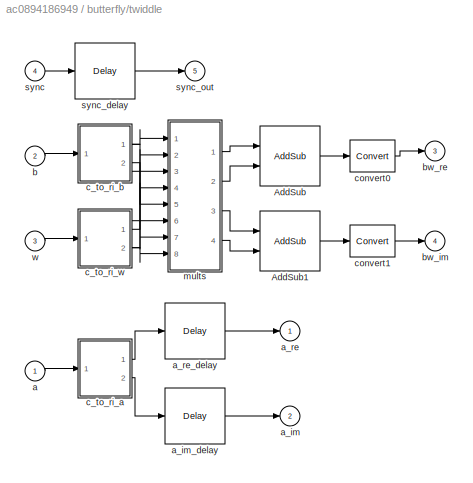
BLOCK [SubSystem] butterfly/twiddle
  AttributesFormatString = data=(18,17)\ncoeffs=(18,16)\nVirtex5\n(Round  (unbiased: +/- Inf),Wrap)\ntwiddle_general_4mult
  FunctionWithSeparateData = off
  MaskHideContents = off
  MinAlgLoopOccurrences = off
  Opaque = off
  Ports = [4, 5]
  PropExecContextOutsideSubsystem = off
  RTWSystemCode = Auto
  RequestExecContextInheritance = off
BLOCK [Reference] butterfly/twiddle/AddSub  REF=xbsIndex_r4/AddSub
  Ports = [2, 1]
  SourceBlock = xbsIndex_r4/AddSub
  SourceType = Xilinx Adder/Subtracter Block
  arith_type = Unsigned
  bin_pt = 14
  block_type = addsub
  dbl_ovrd = off
  en = off
  has_advanced_control = 0
  hw_selection = Fabric
  latency = 1
  mode = Subtraction
  n_bits = 16
  overflow = Wrap
  pipelined = off
  precision = Full
  quantization = Truncate
  sg_icon_stat = 60,60,2,1,white,blue,0,8a00a986,right,,[ ],[ ]
  sggui_pos = -1,-1,-1,-1
  use_behavioral_HDL = on
  use_carryin = off
  use_carryout = off
  xl_area = [0,0,0,0,0,0,0]
  xl_use_area = off
BLOCK [Reference] butterfly/twiddle/AddSub1  REF=xbsIndex_r4/AddSub
  Ports = [2, 1]
  SourceBlock = xbsIndex_r4/AddSub
  SourceType = Xilinx Adder/Subtracter Block
  arith_type = Unsigned
  bin_pt = 14
  block_type = addsub
  dbl_ovrd = off
  en = off
  has_advanced_control = 0
  hw_selection = Fabric
  latency = 1
  mode = Addition
  n_bits = 16
  overflow = Wrap
  pipelined = off
  precision = Full
  quantization = Truncate
  sg_icon_stat = 60,60,2,1,white,blue,0,e85d8a90,right,,[ ],[ ]
  sggui_pos = -1,-1,-1,-1
  use_behavioral_HDL = on
  use_carryin = off
  use_carryout = off
  xl_area = [0,0,0,0,0,0,0]
  xl_use_area = off
BLOCK [Inport] butterfly/twiddle/a
  IconDisplay = Port number
BLOCK [Outport] butterfly/twiddle/a_im
  IconDisplay = Port number
  Port = 2
BLOCK [Reference] butterfly/twiddle/a_im_delay  REF=xbsIndex_r4/Delay
  Ports = [1, 1]
  SourceBlock = xbsIndex_r4/Delay
  SourceType = Xilinx Delay Block
  block_type = delay
  dbl_ovrd = off
  en = off
  has_advanced_control = 0
  infoedit = Hardware notes: A delay line is a chain, each link of which is an SRL16 followed by a flip-flop.
  infoeditControl = Selection of Reset will increase slice count due to use of real FFs and instead of SRLs
  latency = 4
  reg_retiming = on
  rst = off
  sg_icon_stat = 60,56,1,1,white,blue,0,d390c2d8,right,,[ ],[ ]
  sggui_pos = -1,-1,-1,-1
  xl_area = [0,0,0,0,0,0,0]
  xl_use_area = off
BLOCK [Outport] butterfly/twiddle/a_re
  IconDisplay = Port number
BLOCK [Reference] butterfly/twiddle/a_re_delay  REF=xbsIndex_r4/Delay
  Ports = [1, 1]
  SourceBlock = xbsIndex_r4/Delay
  SourceType = Xilinx Delay Block
  block_type = delay
  dbl_ovrd = off
  en = off
  has_advanced_control = 0
  infoedit = Hardware notes: A delay line is a chain, each link of which is an SRL16 followed by a flip-flop.
  infoeditControl = Selection of Reset will increase slice count due to use of real FFs and instead of SRLs
  latency = 4
  reg_retiming = on
  rst = off
  sg_icon_stat = 60,56,1,1,white,blue,0,d390c2d8,right,,[ ],[ ]
  sggui_pos = -1,-1,-1,-1
  xl_area = [0,0,0,0,0,0,0]
  xl_use_area = off
BLOCK [Inport] butterfly/twiddle/b
  IconDisplay = Port number
  Port = 2
BLOCK [Outport] butterfly/twiddle/bw_im
  IconDisplay = Port number
  Port = 4
BLOCK [Outport] butterfly/twiddle/bw_re
  IconDisplay = Port number
  Port = 3
BLOCK [SubSystem] butterfly/twiddle/c_to_ri_a
  AttributesFormatString = 18_17 r/i
  FunctionWithSeparateData = off
  MaskHideContents = off
  MinAlgLoopOccurrences = off
  Opaque = off
  Ports = [1, 2]
  PropExecContextOutsideSubsystem = off
  RTWSystemCode = Auto
  RequestExecContextInheritance = off
BLOCK [Inport] butterfly/twiddle/c_to_ri_a/c
  IconDisplay = Port number
BLOCK [Reference] butterfly/twiddle/c_to_ri_a/force_im  REF=xbsIndex_r4/Reinterpret
  Ports = [1, 1]
  SourceBlock = xbsIndex_r4/Reinterpret
  SourceType = Xilinx Type Reinterpreter Block
  arith_type = Signed  (2's comp)
  bin_pt = 17
  block_type = reinterpret
  force_arith_type = on
  force_bin_pt = on
  has_advanced_control = 0
  sg_icon_stat = 50,32,1,1,white,blue,0,6b04d0b0,right,,[ ],[ ]
  sggui_pos = -1,-1,-1,-1
BLOCK [Reference] butterfly/twiddle/c_to_ri_a/force_re  REF=xbsIndex_r4/Reinterpret
  Ports = [1, 1]
  SourceBlock = xbsIndex_r4/Reinterpret
  SourceType = Xilinx Type Reinterpreter Block
  arith_type = Signed  (2's comp)
  bin_pt = 17
  block_type = reinterpret
  force_arith_type = on
  force_bin_pt = on
  has_advanced_control = 0
  sg_icon_stat = 50,32,1,1,white,blue,0,6b04d0b0,right,,[ ],[ ]
  sggui_pos = -1,-1,-1,-1
BLOCK [Outport] butterfly/twiddle/c_to_ri_a/im
  IconDisplay = Port number
  Port = 2
BLOCK [Outport] butterfly/twiddle/c_to_ri_a/re
  IconDisplay = Port number
BLOCK [Reference] butterfly/twiddle/c_to_ri_a/slice_im  REF=xbsIndex_r4/Slice
  Ports = [1, 1]
  SourceBlock = xbsIndex_r4/Slice
  SourceType = Xilinx Bit Slice Extractor Block
  base0 = LSB of Input
  base1 = MSB of Input
  bit0 = 0
  bit1 = 0
  block_type = slice
  boolean_output = off
  dbl_ovrd = off
  has_advanced_control = 0
  mode = Lower Bit Location + Width
  nbits = 18
  sg_icon_stat = 60,32,1,1,white,blue,0,1fd851a7,right,,[ ],[ ]
  sggui_pos = -1,-1,-1,-1
BLOCK [Reference] butterfly/twiddle/c_to_ri_a/slice_re  REF=xbsIndex_r4/Slice
  Ports = [1, 1]
  SourceBlock = xbsIndex_r4/Slice
  SourceType = Xilinx Bit Slice Extractor Block
  base0 = LSB of Input
  base1 = MSB of Input
  bit0 = 0
  bit1 = 0
  block_type = slice
  boolean_output = off
  dbl_ovrd = off
  has_advanced_control = 0
  mode = Upper Bit Location + Width
  nbits = 18
  sg_icon_stat = 60,32,1,1,white,blue,0,1fd851a7,right,,[ ],[ ]
  sggui_pos = -1,-1,-1,-1
BLOCK [SubSystem] butterfly/twiddle/c_to_ri_b
  AttributesFormatString = 18_17 r/i
  FunctionWithSeparateData = off
  MaskHideContents = off
  MinAlgLoopOccurrences = off
  Opaque = off
  Ports = [1, 2]
  PropExecContextOutsideSubsystem = off
  RTWSystemCode = Auto
  RequestExecContextInheritance = off
BLOCK [Inport] butterfly/twiddle/c_to_ri_b/c
  IconDisplay = Port number
BLOCK [Reference] butterfly/twiddle/c_to_ri_b/force_im  REF=xbsIndex_r4/Reinterpret
  Ports = [1, 1]
  SourceBlock = xbsIndex_r4/Reinterpret
  SourceType = Xilinx Type Reinterpreter Block
  arith_type = Signed  (2's comp)
  bin_pt = 17
  block_type = reinterpret
  force_arith_type = on
  force_bin_pt = on
  has_advanced_control = 0
  sg_icon_stat = 50,32,1,1,white,blue,0,6b04d0b0,right,,[ ],[ ]
  sggui_pos = -1,-1,-1,-1
BLOCK [Reference] butterfly/twiddle/c_to_ri_b/force_re  REF=xbsIndex_r4/Reinterpret
  Ports = [1, 1]
  SourceBlock = xbsIndex_r4/Reinterpret
  SourceType = Xilinx Type Reinterpreter Block
  arith_type = Signed  (2's comp)
  bin_pt = 17
  block_type = reinterpret
  force_arith_type = on
  force_bin_pt = on
  has_advanced_control = 0
  sg_icon_stat = 50,32,1,1,white,blue,0,6b04d0b0,right,,[ ],[ ]
  sggui_pos = -1,-1,-1,-1
BLOCK [Outport] butterfly/twiddle/c_to_ri_b/im
  IconDisplay = Port number
  Port = 2
BLOCK [Outport] butterfly/twiddle/c_to_ri_b/re
  IconDisplay = Port number
BLOCK [Reference] butterfly/twiddle/c_to_ri_b/slice_im  REF=xbsIndex_r4/Slice
  Ports = [1, 1]
  SourceBlock = xbsIndex_r4/Slice
  SourceType = Xilinx Bit Slice Extractor Block
  base0 = LSB of Input
  base1 = MSB of Input
  bit0 = 0
  bit1 = 0
  block_type = slice
  boolean_output = off
  dbl_ovrd = off
  has_advanced_control = 0
  mode = Lower Bit Location + Width
  nbits = 18
  sg_icon_stat = 60,32,1,1,white,blue,0,1fd851a7,right,,[ ],[ ]
  sggui_pos = -1,-1,-1,-1
BLOCK [Reference] butterfly/twiddle/c_to_ri_b/slice_re  REF=xbsIndex_r4/Slice
  Ports = [1, 1]
  SourceBlock = xbsIndex_r4/Slice
  SourceType = Xilinx Bit Slice Extractor Block
  base0 = LSB of Input
  base1 = MSB of Input
  bit0 = 0
  bit1 = 0
  block_type = slice
  boolean_output = off
  dbl_ovrd = off
  has_advanced_control = 0
  mode = Upper Bit Location + Width
  nbits = 18
  sg_icon_stat = 60,32,1,1,white,blue,0,1fd851a7,right,,[ ],[ ]
  sggui_pos = -1,-1,-1,-1
BLOCK [SubSystem] butterfly/twiddle/c_to_ri_w
  AttributesFormatString = 18_17 r/i
  FunctionWithSeparateData = off
  MaskHideContents = off
  MinAlgLoopOccurrences = off
  Opaque = off
  Ports = [1, 2]
  PropExecContextOutsideSubsystem = off
  RTWSystemCode = Auto
  RequestExecContextInheritance = off
BLOCK [Inport] butterfly/twiddle/c_to_ri_w/c
  IconDisplay = Port number
BLOCK [Reference] butterfly/twiddle/c_to_ri_w/force_im  REF=xbsIndex_r4/Reinterpret
  Ports = [1, 1]
  SourceBlock = xbsIndex_r4/Reinterpret
  SourceType = Xilinx Type Reinterpreter Block
  arith_type = Signed  (2's comp)
  bin_pt = 17
  block_type = reinterpret
  force_arith_type = on
  force_bin_pt = on
  has_advanced_control = 0
  sg_icon_stat = 50,32,1,1,white,blue,0,6b04d0b0,right,,[ ],[ ]
  sggui_pos = -1,-1,-1,-1
BLOCK [Reference] butterfly/twiddle/c_to_ri_w/force_re  REF=xbsIndex_r4/Reinterpret
  Ports = [1, 1]
  SourceBlock = xbsIndex_r4/Reinterpret
  SourceType = Xilinx Type Reinterpreter Block
  arith_type = Signed  (2's comp)
  bin_pt = 17
  block_type = reinterpret
  force_arith_type = on
  force_bin_pt = on
  has_advanced_control = 0
  sg_icon_stat = 50,32,1,1,white,blue,0,6b04d0b0,right,,[ ],[ ]
  sggui_pos = -1,-1,-1,-1
BLOCK [Outport] butterfly/twiddle/c_to_ri_w/im
  IconDisplay = Port number
  Port = 2
BLOCK [Outport] butterfly/twiddle/c_to_ri_w/re
  IconDisplay = Port number
BLOCK [Reference] butterfly/twiddle/c_to_ri_w/slice_im  REF=xbsIndex_r4/Slice
  Ports = [1, 1]
  SourceBlock = xbsIndex_r4/Slice
  SourceType = Xilinx Bit Slice Extractor Block
  base0 = LSB of Input
  base1 = MSB of Input
  bit0 = 0
  bit1 = 0
  block_type = slice
  boolean_output = off
  dbl_ovrd = off
  has_advanced_control = 0
  mode = Lower Bit Location + Width
  nbits = 18
  sg_icon_stat = 60,32,1,1,white,blue,0,1fd851a7,right,,[ ],[ ]
  sggui_pos = -1,-1,-1,-1
BLOCK [Reference] butterfly/twiddle/c_to_ri_w/slice_re  REF=xbsIndex_r4/Slice
  Ports = [1, 1]
  SourceBlock = xbsIndex_r4/Slice
  SourceType = Xilinx Bit Slice Extractor Block
  base0 = LSB of Input
  base1 = MSB of Input
  bit0 = 0
  bit1 = 0
  block_type = slice
  boolean_output = off
  dbl_ovrd = off
  has_advanced_control = 0
  mode = Upper Bit Location + Width
  nbits = 18
  sg_icon_stat = 60,32,1,1,white,blue,0,1fd851a7,right,,[ ],[ ]
  sggui_pos = -1,-1,-1,-1
BLOCK [Reference] butterfly/twiddle/convert0  REF=xbsIndex_r4/Convert
  Ports = [1, 1]
  SourceBlock = xbsIndex_r4/Convert
  SourceType = Xilinx Type Converter Block
  arith_type = Signed  (2's comp)
  bin_pt = 19
  block_type = convert
  dbl_ovrd = off
  en = off
  exp_bits = 8
  float_type = Single
  fraction_bits = 24
  gui_display_data_type = Fixed-point
  has_advanced_control = 0
  infoedit = Hardware notes: rounding and saturating require hardware resources; truncating and wrapping do not.
  latency = 1
  n_bits = 22
  overflow = Wrap
  pipeline = on
  quantization = Round  (unbiased: +/- Inf)
  sg_icon_stat = 45,32,1,1,white,blue,0,0c6bad53,right,,[ ],[ ]
  sg_mask_display = fprintf('','COMMENT: begin icon graphics');\npatch([0 45 45 0 0 ],[0 0 32 32 0 ],[0.77 0.82 0.91 ]);\nplot([0 45 45 0 0 ],[0 0 32 32 0 ]);\npatch([13.1 18.88 22.88 26.88 30.88 22.88 17.1 13.1 ],[20.44 20.44 24.44 20.44 24.44 24.44 24.44 20.44 ],[1 1 1 ]);\npatch([17.1 22.88 18.88 13.1 17.1 ],[16.44 16.44 20.44 20.44 16.44 ],[0.931 0.946 0.973 ]);\npatch([13.1 18.88 22.88 17.1 13.1 ],[12.44 12.44 16.44 ...<+387ch>
  sggui_pos = -1,-1,-1,-1
  xl_area = [0,0,0,0,0,0,0]
  xl_use_area = off
BLOCK [Reference] butterfly/twiddle/convert1  REF=xbsIndex_r4/Convert
  Ports = [1, 1]
  SourceBlock = xbsIndex_r4/Convert
  SourceType = Xilinx Type Converter Block
  arith_type = Signed  (2's comp)
  bin_pt = 19
  block_type = convert
  dbl_ovrd = off
  en = off
  exp_bits = 8
  float_type = Single
  fraction_bits = 24
  gui_display_data_type = Fixed-point
  has_advanced_control = 0
  infoedit = Hardware notes: rounding and saturating require hardware resources; truncating and wrapping do not.
  latency = 1
  n_bits = 22
  overflow = Wrap
  pipeline = on
  quantization = Round  (unbiased: +/- Inf)
  sg_icon_stat = 45,32,1,1,white,blue,0,0c6bad53,right,,[ ],[ ]
  sg_mask_display = fprintf('','COMMENT: begin icon graphics');\npatch([0 45 45 0 0 ],[0 0 32 32 0 ],[0.77 0.82 0.91 ]);\nplot([0 45 45 0 0 ],[0 0 32 32 0 ]);\npatch([13.1 18.88 22.88 26.88 30.88 22.88 17.1 13.1 ],[20.44 20.44 24.44 20.44 24.44 24.44 24.44 20.44 ],[1 1 1 ]);\npatch([17.1 22.88 18.88 13.1 17.1 ],[16.44 16.44 20.44 20.44 16.44 ],[0.931 0.946 0.973 ]);\npatch([13.1 18.88 22.88 17.1 13.1 ],[12.44 12.44 16.44 ...<+387ch>
  sggui_pos = -1,-1,-1,-1
  xl_area = [0,0,0,0,0,0,0]
  xl_use_area = off
BLOCK [SubSystem] butterfly/twiddle/mults
  FunctionWithSeparateData = off
  MaskHideContents = off
  MinAlgLoopOccurrences = off
  Opaque = off
  Ports = [8, 4]
  PropExecContextOutsideSubsystem = off
  RTWSystemCode = Auto
  RequestExecContextInheritance = off
BLOCK [Inport] butterfly/twiddle/mults/a1
  IconDisplay = Port number
BLOCK [Inport] butterfly/twiddle/mults/a2
  IconDisplay = Port number
  Port = 3
BLOCK [Inport] butterfly/twiddle/mults/a3
  IconDisplay = Port number
  Port = 5
BLOCK [Inport] butterfly/twiddle/mults/a4
  IconDisplay = Port number
  Port = 7
BLOCK [Inport] butterfly/twiddle/mults/b1
  IconDisplay = Port number
  Port = 2
BLOCK [Inport] butterfly/twiddle/mults/b2
  IconDisplay = Port number
  Port = 4
BLOCK [Inport] butterfly/twiddle/mults/b3
  IconDisplay = Port number
  Port = 6
BLOCK [Inport] butterfly/twiddle/mults/b4
  IconDisplay = Port number
  Port = 8
BLOCK [Outport] butterfly/twiddle/mults/c1
  IconDisplay = Port number
BLOCK [Outport] butterfly/twiddle/mults/c2
  IconDisplay = Port number
  Port = 2
BLOCK [Outport] butterfly/twiddle/mults/c3
  IconDisplay = Port number
  Port = 3
BLOCK [Outport] butterfly/twiddle/mults/c4
  IconDisplay = Port number
  Port = 4
BLOCK [Reference] butterfly/twiddle/mults/mult_1  REF=xbsIndex_r4/Mult
  Ports = [2, 1]
  SourceBlock = xbsIndex_r4/Mult
  SourceType = Xilinx Multiplier Block
  arith_type = Signed  (2's comp)
  bin_pt = 14
  block_type = mult
  dbl_ovrd = off
  en = off
  has_advanced_control = 0
  infoedit = Hardware notes: To check for the optimum internal pipeline stages of the dedicated multiplier you must select 'Test for optimum pipelining'.<br><br>Optimization Goal: For implementation into device fabric (LUTs), the Speed or Area optimization will take effect only if it's supported by IP for the particular device family. Otherwise, the results will be identical regardless of the selection.  <repeated x4 — deduplicated; at blocks: mult_1, mult_2, mult_3, mult_4>
  latency = 2
  n_bits = 16
  opt = Speed
  optimum_pipeline = off
  overflow = Wrap
  pipeline = on
  placement_style = Triangular
  precision = Full
  quantization = Round  (unbiased: +/- Inf)
  sg_icon_stat = 55,55,2,1,white,blue,0,2fbe4d8a,right,,[ ],[ ]
  sg_mask_display = fprintf('','COMMENT: begin icon graphics');\npatch([0 55 55 0 0 ],[0 0 55 55 0 ],[0.77 0.82 0.91 ]);\nplot([0 55 55 0 0 ],[0 0 55 55 0 ]);\npatch([11.425 21.54 28.54 35.54 42.54 28.54 18.425 11.425 ],[34.77 34.77 41.77 34.77 41.77 41.77 41.77 34.77 ],[1 1 1 ]);\npatch([18.425 28.54 21.54 11.425 18.425 ],[27.77 27.77 34.77 34.77 27.77 ],[0.931 0.946 0.973 ]);\npatch([11.425 21.54 28.54 18.425 11.425 ],[...<+522ch>  <repeated x4 — deduplicated; at blocks: mult_1, mult_2, mult_3, mult_4>
  sggui_pos = -1,-1,-1,-1
  use_behavioral_HDL = off
  use_embedded = on
  use_rpm = on
  xl_area = [0,0,0,0,0,0,0]
  xl_use_area = off
BLOCK [Reference] butterfly/twiddle/mults/mult_2  REF=xbsIndex_r4/Mult
  Ports = [2, 1]
  SourceBlock = xbsIndex_r4/Mult
  SourceType = Xilinx Multiplier Block
  arith_type = Signed  (2's comp)
  bin_pt = 14
  block_type = mult
  dbl_ovrd = off
  en = off
  has_advanced_control = 0
  latency = 2
  n_bits = 16
  opt = Speed
  optimum_pipeline = off
  overflow = Wrap
  pipeline = on
  placement_style = Triangular
  precision = Full
  quantization = Round  (unbiased: +/- Inf)
  sg_icon_stat = 55,55,2,1,white,blue,0,2fbe4d8a,right,,[ ],[ ]
  sggui_pos = -1,-1,-1,-1
  use_behavioral_HDL = off
  use_embedded = on
  use_rpm = on
  xl_area = [0,0,0,0,0,0,0]
  xl_use_area = off
BLOCK [Reference] butterfly/twiddle/mults/mult_3  REF=xbsIndex_r4/Mult
  Ports = [2, 1]
  SourceBlock = xbsIndex_r4/Mult
  SourceType = Xilinx Multiplier Block
  arith_type = Signed  (2's comp)
  bin_pt = 14
  block_type = mult
  dbl_ovrd = off
  en = off
  has_advanced_control = 0
  latency = 2
  n_bits = 16
  opt = Speed
  optimum_pipeline = off
  overflow = Wrap
  pipeline = on
  placement_style = Triangular
  precision = Full
  quantization = Round  (unbiased: +/- Inf)
  sg_icon_stat = 55,55,2,1,white,blue,0,2fbe4d8a,right,,[ ],[ ]
  sggui_pos = -1,-1,-1,-1
  use_behavioral_HDL = off
  use_embedded = on
  use_rpm = on
  xl_area = [0,0,0,0,0,0,0]
  xl_use_area = off
BLOCK [Reference] butterfly/twiddle/mults/mult_4  REF=xbsIndex_r4/Mult
  Ports = [2, 1]
  SourceBlock = xbsIndex_r4/Mult
  SourceType = Xilinx Multiplier Block
  arith_type = Signed  (2's comp)
  bin_pt = 14
  block_type = mult
  dbl_ovrd = off
  en = off
  has_advanced_control = 0
  latency = 2
  n_bits = 16
  opt = Speed
  optimum_pipeline = off
  overflow = Wrap
  pipeline = on
  placement_style = Triangular
  precision = Full
  quantization = Round  (unbiased: +/- Inf)
  sg_icon_stat = 55,55,2,1,white,blue,0,2fbe4d8a,right,,[ ],[ ]
  sggui_pos = -1,-1,-1,-1
  use_behavioral_HDL = off
  use_embedded = on
  use_rpm = on
  xl_area = [0,0,0,0,0,0,0]
  xl_use_area = off
BLOCK [Inport] butterfly/twiddle/sync
  IconDisplay = Port number
  Port = 4
BLOCK [Reference] butterfly/twiddle/sync_delay  REF=xbsIndex_r4/Delay
  Ports = [1, 1]
  SourceBlock = xbsIndex_r4/Delay
  SourceType = Xilinx Delay Block
  block_type = delay
  dbl_ovrd = off
  en = off
  has_advanced_control = 0
  infoedit = Hardware notes: A delay line is a chain, each link of which is an SRL16 followed by a flip-flop.
  infoeditControl = Selection of Reset will increase slice count due to use of real FFs and instead of SRLs
  latency = 4
  reg_retiming = off
  rst = off
  sg_icon_stat = 60,56,1,1,white,blue,0,d390c2d8,right,,[ ],[ ]
  sggui_pos = -1,-1,-1,-1
  xl_area = [0,0,0,0,0,0,0]
  xl_use_area = off
BLOCK [Outport] butterfly/twiddle/sync_out
  IconDisplay = Port number
  Port = 5
BLOCK [Inport] butterfly/twiddle/w
  IconDisplay = Port number
  Port = 3
BLOCK [Inport] butterfly/w
  IconDisplay = Port number
  Port = 3
BLOCK [SubSystem] from_workspace_complex
  FunctionWithSeparateData = off
  MaskHideContents = off
  MinAlgLoopOccurrences = off
  Opaque = off
  Ports = [0, 1]
  PropExecContextOutsideSubsystem = off
  RTWSystemCode = Auto
  RequestExecContextInheritance = off
  UserDataPersistent = on
BLOCK [Outport] from_workspace_complex/a
  IconDisplay = Port number
BLOCK [ComplexToRealImag] from_workspace_complex/c_to_ri_simulink
  Ports = [1, 2]
BLOCK [Reference] from_workspace_complex/gateway_imag  REF=xbsIndex_r4/Gateway In
  ADCChannel = '1'
  LOCs = {}
  Ports = [1, 1]
  SourceBlock = xbsIndex_r4/Gateway In
  SourceType = Xilinx Gateway In Block
  UseAsADC = off
  arith_type = Signed  (2's comp)
  bin_pt = 17
  block_type = gatewayin
  dbl_ovrd = off
  exp_width = 8
  frac_width = 24
  gui_display_data_type = Fixed-point
  has_advanced_control = 0
  hdl_port = on
  infoedit = Gateway in block.  Converts inputs of type Simulink integer, single, double and fixed-point to  Xilinx fixed-point or floating-point data type.<br><br>Hardware notes:  In hardware these blocks become top level input ports.  <repeated x6 — deduplicated; at blocks: gateway_imag, gateway_real>
  inherit_from_input = off
  locs_specified = off
  n_bits = 18
  overflow = Wrap
  period = 1
  preci_type = Single
  quantization = Truncate
  sg_icon_stat = 65,20,1,1,white,yellow,1,00d3666e,right,,[ ],[ ]
  sg_mask_display = fprintf('','COMMENT: begin icon graphics');\npatch([0 65 65 0 0 ],[0 0 20 20 0 ],[0.95 0.93 0.65 ]);\nplot([0 65 65 0 0 ],[0 0 20 20 0 ]);\npatch([27.55 30.44 32.44 34.44 36.44 32.44 29.55 27.55 ],[12.22 12.22 14.22 12.22 14.22 14.22 14.22 12.22 ],[1 1 1 ]);\npatch([29.55 32.44 30.44 27.55 29.55 ],[10.22 10.22 12.22 12.22 10.22 ],[0.985 0.979 0.895 ]);\npatch([27.55 30.44 32.44 29.55 27.55 ],[8.22 8.22...<+383ch>  <repeated x6 — deduplicated; at blocks: gateway_imag, gateway_real>
  sggui_pos = -1,-1,-1,-1
  timing_constraint = None
  xl_area = [0,0,0,0,0,0,0]
  xl_use_area = off
BLOCK [Reference] from_workspace_complex/gateway_real  REF=xbsIndex_r4/Gateway In
  ADCChannel = '1'
  LOCs = {}
  Ports = [1, 1]
  SourceBlock = xbsIndex_r4/Gateway In
  SourceType = Xilinx Gateway In Block
  UseAsADC = off
  arith_type = Signed  (2's comp)
  bin_pt = 17
  block_type = gatewayin
  dbl_ovrd = off
  exp_width = 8
  frac_width = 24
  gui_display_data_type = Fixed-point
  has_advanced_control = 0
  hdl_port = on
  inherit_from_input = off
  locs_specified = off
  n_bits = 18
  overflow = Wrap
  period = 1
  preci_type = Single
  quantization = Truncate
  sg_icon_stat = 65,20,1,1,white,yellow,1,00d3666e,right,,[ ],[ ]
  sggui_pos = -1,-1,-1,-1
  timing_constraint = None
  xl_area = [0,0,0,0,0,0,0]
  xl_use_area = off
BLOCK [SubSystem] from_workspace_complex/ri_to_c
  FunctionWithSeparateData = off
  MaskHideContents = off
  MinAlgLoopOccurrences = off
  Opaque = off
  Ports = [2, 1]
  PropExecContextOutsideSubsystem = off
  RTWSystemCode = Auto
  RequestExecContextInheritance = off
BLOCK [Outport] from_workspace_complex/ri_to_c/c
  IconDisplay = Port number
BLOCK [Reference] from_workspace_complex/ri_to_c/concat  REF=xbsIndex_r4/Concat
  Ports = [2, 1]
  SourceBlock = xbsIndex_r4/Concat
  SourceType = Xilinx Bus Concatenator Block
  block_type = concat
  dbl_ovrd = off
  has_advanced_control = 0
  infoedit = Concatenates two or more inputs.  Output will be cast to an unsigned value with the binary point at zero.
  num_inputs = 2
  sg_icon_stat = 60,60,2,1,white,blue,0,16398980,right,,[ ],[ ]
  sggui_pos = -1,-1,-1,-1
BLOCK [Reference] from_workspace_complex/ri_to_c/force_im  REF=xbsIndex_r4/Reinterpret
  Ports = [1, 1]
  SourceBlock = xbsIndex_r4/Reinterpret
  SourceType = Xilinx Type Reinterpreter Block
  arith_type = Unsigned
  bin_pt = 0
  block_type = reinterpret
  force_arith_type = on
  force_bin_pt = on
  has_advanced_control = 0
  sg_icon_stat = 50,32,1,1,white,blue,0,6b04d0b0,right,,[ ],[ ]
  sggui_pos = -1,-1,-1,-1
BLOCK [Reference] from_workspace_complex/ri_to_c/force_re  REF=xbsIndex_r4/Reinterpret
  Ports = [1, 1]
  SourceBlock = xbsIndex_r4/Reinterpret
  SourceType = Xilinx Type Reinterpreter Block
  arith_type = Unsigned
  bin_pt = 0
  block_type = reinterpret
  force_arith_type = on
  force_bin_pt = on
  has_advanced_control = 0
  sg_icon_stat = 50,32,1,1,white,blue,0,6b04d0b0,right,,[ ],[ ]
  sggui_pos = -1,-1,-1,-1
BLOCK [Inport] from_workspace_complex/ri_to_c/im
  IconDisplay = Port number
  Port = 2
BLOCK [Inport] from_workspace_complex/ri_to_c/re
  IconDisplay = Port number
BLOCK [FromWorkspace] from_workspace_complex/workspace_var
  SampleTime = 0
  VariableName = a
  ZeroCross = on
BLOCK [SubSystem] from_workspace_complex1
  FunctionWithSeparateData = off
  MaskHideContents = off
  MinAlgLoopOccurrences = off
  Opaque = off
  Ports = [0, 1]
  PropExecContextOutsideSubsystem = off
  RTWSystemCode = Auto
  RequestExecContextInheritance = off
  UserDataPersistent = on
BLOCK [Outport] from_workspace_complex1/b
  IconDisplay = Port number
BLOCK [ComplexToRealImag] from_workspace_complex1/c_to_ri_simulink
  Ports = [1, 2]
BLOCK [Reference] from_workspace_complex1/gateway_imag  REF=xbsIndex_r4/Gateway In
  ADCChannel = '1'
  LOCs = {}
  Ports = [1, 1]
  SourceBlock = xbsIndex_r4/Gateway In
  SourceType = Xilinx Gateway In Block
  UseAsADC = off
  arith_type = Signed  (2's comp)
  bin_pt = 17
  block_type = gatewayin
  dbl_ovrd = off
  exp_width = 8
  frac_width = 24
  gui_display_data_type = Fixed-point
  has_advanced_control = 0
  hdl_port = on
  inherit_from_input = off
  locs_specified = off
  n_bits = 18
  overflow = Wrap
  period = 1
  preci_type = Single
  quantization = Truncate
  sg_icon_stat = 65,20,1,1,white,yellow,1,00d3666e,right,,[ ],[ ]
  sggui_pos = -1,-1,-1,-1
  timing_constraint = None
  xl_area = [0,0,0,0,0,0,0]
  xl_use_area = off
BLOCK [Reference] from_workspace_complex1/gateway_real  REF=xbsIndex_r4/Gateway In
  ADCChannel = '1'
  LOCs = {}
  Ports = [1, 1]
  SourceBlock = xbsIndex_r4/Gateway In
  SourceType = Xilinx Gateway In Block
  UseAsADC = off
  arith_type = Signed  (2's comp)
  bin_pt = 17
  block_type = gatewayin
  dbl_ovrd = off
  exp_width = 8
  frac_width = 24
  gui_display_data_type = Fixed-point
  has_advanced_control = 0
  hdl_port = on
  inherit_from_input = off
  locs_specified = off
  n_bits = 18
  overflow = Wrap
  period = 1
  preci_type = Single
  quantization = Truncate
  sg_icon_stat = 65,20,1,1,white,yellow,1,00d3666e,right,,[ ],[ ]
  sggui_pos = -1,-1,-1,-1
  timing_constraint = None
  xl_area = [0,0,0,0,0,0,0]
  xl_use_area = off
BLOCK [SubSystem] from_workspace_complex1/ri_to_c
  FunctionWithSeparateData = off
  MaskHideContents = off
  MinAlgLoopOccurrences = off
  Opaque = off
  Ports = [2, 1]
  PropExecContextOutsideSubsystem = off
  RTWSystemCode = Auto
  RequestExecContextInheritance = off
BLOCK [Outport] from_workspace_complex1/ri_to_c/c
  IconDisplay = Port number
BLOCK [Reference] from_workspace_complex1/ri_to_c/concat  REF=xbsIndex_r4/Concat
  Ports = [2, 1]
  SourceBlock = xbsIndex_r4/Concat
  SourceType = Xilinx Bus Concatenator Block
  block_type = concat
  dbl_ovrd = off
  has_advanced_control = 0
  infoedit = Concatenates two or more inputs.  Output will be cast to an unsigned value with the binary point at zero.
  num_inputs = 2
  sg_icon_stat = 60,60,2,1,white,blue,0,16398980,right,,[ ],[ ]
  sggui_pos = -1,-1,-1,-1
BLOCK [Reference] from_workspace_complex1/ri_to_c/force_im  REF=xbsIndex_r4/Reinterpret
  Ports = [1, 1]
  SourceBlock = xbsIndex_r4/Reinterpret
  SourceType = Xilinx Type Reinterpreter Block
  arith_type = Unsigned
  bin_pt = 0
  block_type = reinterpret
  force_arith_type = on
  force_bin_pt = on
  has_advanced_control = 0
  sg_icon_stat = 50,32,1,1,white,blue,0,6b04d0b0,right,,[ ],[ ]
  sggui_pos = -1,-1,-1,-1
BLOCK [Reference] from_workspace_complex1/ri_to_c/force_re  REF=xbsIndex_r4/Reinterpret
  Ports = [1, 1]
  SourceBlock = xbsIndex_r4/Reinterpret
  SourceType = Xilinx Type Reinterpreter Block
  arith_type = Unsigned
  bin_pt = 0
  block_type = reinterpret
  force_arith_type = on
  force_bin_pt = on
  has_advanced_control = 0
  sg_icon_stat = 50,32,1,1,white,blue,0,6b04d0b0,right,,[ ],[ ]
  sggui_pos = -1,-1,-1,-1
BLOCK [Inport] from_workspace_complex1/ri_to_c/im
  IconDisplay = Port number
  Port = 2
BLOCK [Inport] from_workspace_complex1/ri_to_c/re
  IconDisplay = Port number
BLOCK [FromWorkspace] from_workspace_complex1/workspace_var
  SampleTime = 0
  VariableName = b
  ZeroCross = on
BLOCK [SubSystem] from_workspace_complex2
  FunctionWithSeparateData = off
  MaskHideContents = off
  MinAlgLoopOccurrences = off
  Opaque = off
  Ports = [0, 1]
  PropExecContextOutsideSubsystem = off
  RTWSystemCode = Auto
  RequestExecContextInheritance = off
  UserDataPersistent = on
BLOCK [ComplexToRealImag] from_workspace_complex2/c_to_ri_simulink
  Ports = [1, 2]
BLOCK [Reference] from_workspace_complex2/gateway_imag  REF=xbsIndex_r4/Gateway In
  ADCChannel = '1'
  LOCs = {}
  Ports = [1, 1]
  SourceBlock = xbsIndex_r4/Gateway In
  SourceType = Xilinx Gateway In Block
  UseAsADC = off
  arith_type = Signed  (2's comp)
  bin_pt = 17
  block_type = gatewayin
  dbl_ovrd = off
  exp_width = 8
  frac_width = 24
  gui_display_data_type = Fixed-point
  has_advanced_control = 0
  hdl_port = on
  inherit_from_input = off
  locs_specified = off
  n_bits = 18
  overflow = Wrap
  period = 1
  preci_type = Single
  quantization = Truncate
  sg_icon_stat = 65,20,1,1,white,yellow,1,00d3666e,right,,[ ],[ ]
  sggui_pos = -1,-1,-1,-1
  timing_constraint = None
  xl_area = [0,0,0,0,0,0,0]
  xl_use_area = off
BLOCK [Reference] from_workspace_complex2/gateway_real  REF=xbsIndex_r4/Gateway In
  ADCChannel = '1'
  LOCs = {}
  Ports = [1, 1]
  SourceBlock = xbsIndex_r4/Gateway In
  SourceType = Xilinx Gateway In Block
  UseAsADC = off
  arith_type = Signed  (2's comp)
  bin_pt = 17
  block_type = gatewayin
  dbl_ovrd = off
  exp_width = 8
  frac_width = 24
  gui_display_data_type = Fixed-point
  has_advanced_control = 0
  hdl_port = on
  inherit_from_input = off
  locs_specified = off
  n_bits = 18
  overflow = Wrap
  period = 1
  preci_type = Single
  quantization = Truncate
  sg_icon_stat = 65,20,1,1,white,yellow,1,00d3666e,right,,[ ],[ ]
  sggui_pos = -1,-1,-1,-1
  timing_constraint = None
  xl_area = [0,0,0,0,0,0,0]
  xl_use_area = off
BLOCK [SubSystem] from_workspace_complex2/ri_to_c
  FunctionWithSeparateData = off
  MaskHideContents = off
  MinAlgLoopOccurrences = off
  Opaque = off
  Ports = [2, 1]
  PropExecContextOutsideSubsystem = off
  RTWSystemCode = Auto
  RequestExecContextInheritance = off
BLOCK [Outport] from_workspace_complex2/ri_to_c/c
  IconDisplay = Port number
BLOCK [Reference] from_workspace_complex2/ri_to_c/concat  REF=xbsIndex_r4/Concat
  Ports = [2, 1]
  SourceBlock = xbsIndex_r4/Concat
  SourceType = Xilinx Bus Concatenator Block
  block_type = concat
  dbl_ovrd = off
  has_advanced_control = 0
  infoedit = Concatenates two or more inputs.  Output will be cast to an unsigned value with the binary point at zero.
  num_inputs = 2
  sg_icon_stat = 60,60,2,1,white,blue,0,16398980,right,,[ ],[ ]
  sggui_pos = -1,-1,-1,-1
BLOCK [Reference] from_workspace_complex2/ri_to_c/force_im  REF=xbsIndex_r4/Reinterpret
  Ports = [1, 1]
  SourceBlock = xbsIndex_r4/Reinterpret
  SourceType = Xilinx Type Reinterpreter Block
  arith_type = Unsigned
  bin_pt = 0
  block_type = reinterpret
  force_arith_type = on
  force_bin_pt = on
  has_advanced_control = 0
  sg_icon_stat = 50,32,1,1,white,blue,0,6b04d0b0,right,,[ ],[ ]
  sggui_pos = -1,-1,-1,-1
BLOCK [Reference] from_workspace_complex2/ri_to_c/force_re  REF=xbsIndex_r4/Reinterpret
  Ports = [1, 1]
  SourceBlock = xbsIndex_r4/Reinterpret
  SourceType = Xilinx Type Reinterpreter Block
  arith_type = Unsigned
  bin_pt = 0
  block_type = reinterpret
  force_arith_type = on
  force_bin_pt = on
  has_advanced_control = 0
  sg_icon_stat = 50,32,1,1,white,blue,0,6b04d0b0,right,,[ ],[ ]
  sggui_pos = -1,-1,-1,-1
BLOCK [Inport] from_workspace_complex2/ri_to_c/im
  IconDisplay = Port number
  Port = 2
BLOCK [Inport] from_workspace_complex2/ri_to_c/re
  IconDisplay = Port number
BLOCK [Outport] from_workspace_complex2/w
  IconDisplay = Port number
BLOCK [FromWorkspace] from_workspace_complex2/workspace_var
  SampleTime = 0
  VariableName = w
  ZeroCross = on
BLOCK [Reference] shift_bool  REF=xbsIndex_r4/Constant
  Ports = [0, 1]
  SourceBlock = xbsIndex_r4/Constant
  SourceType = Xilinx Constant Block Block
  arith_type = Boolean
  bin_pt = 0
  block_type = constant
  carry = CIN
  const = 0
  dbl_ovrd = off
  dsp48_infoedit = The use of this block for DSP48 instructions is deprecated.  Please use the Opmode block.
  equ = P=C
  exp_width = 8
  explicit_period = on
  frac_width = 24
  gui_display_data_type = Boolean
  has_advanced_control = 0
  inp1 = P
  inp2 = PCIN>>17
  n_bits = 32
  opr = +
  opselect = C
  period = 1
  preci_type = Single
  sg_icon_stat = 50,18,0,1,white,blue,0,bf4ddd8b,right,,[ ],[ ]
  sg_mask_display = fprintf('','COMMENT: begin icon graphics');\npatch([0 50 50 0 0 ],[0 0 18 18 0 ],[0.77 0.82 0.91 ]);\nplot([0 50 50 0 0 ],[0 0 18 18 0 ]);\npatch([20.55 23.44 25.44 27.44 29.44 25.44 22.55 20.55 ],[11.22 11.22 13.22 11.22 13.22 13.22 13.22 11.22 ],[1 1 1 ]);\npatch([22.55 25.44 23.44 20.55 22.55 ],[9.22 9.22 11.22 11.22 9.22 ],[0.931 0.946 0.973 ]);\npatch([20.55 23.44 25.44 22.55 20.55 ],[7.22 7.22 9....<+300ch>
  sggui_pos = -1,-1,-1,-1
BLOCK [SubSystem] test_sync
  FunctionWithSeparateData = off
  MaskHideContents = off
  MinAlgLoopOccurrences = off
  Opaque = off
  Ports = [0, 1]
  PropExecContextOutsideSubsystem = off
  RTWSystemCode = Auto
  RequestExecContextInheritance = off
BLOCK [Reference] test_sync/Constant1  REF=xbsIndex_r4/Constant
  Ports = [0, 1]
  SourceBlock = xbsIndex_r4/Constant
  SourceType = Xilinx Constant Block Block
  arith_type = Boolean
  bin_pt = 14
  block_type = constant
  carry = CIN
  const = 1
  dbl_ovrd = off
  dsp48_infoedit = The use of this block for DSP48 instructions is deprecated.  Please use the Opmode block.
  equ = P=C
  exp_width = 8
  explicit_period = on
  frac_width = 24
  gui_display_data_type = Boolean
  has_advanced_control = 0
  inp1 = P
  inp2 = PCIN>>17
  n_bits = 16
  opr = +
  opselect = C
  period = 1
  preci_type = Single
  sg_icon_stat = 55,26,0,1,white,blue,0,1c72b5be,right,,[ ],[ ]
  sg_mask_display = fprintf('','COMMENT: begin icon graphics');\npatch([0 55 55 0 0 ],[0 0 26 26 0 ],[0.77 0.82 0.91 ]);\nplot([0 55 55 0 0 ],[0 0 26 26 0 ]);\npatch([20.325 24.66 27.66 30.66 33.66 27.66 23.325 20.325 ],[16.33 16.33 19.33 16.33 19.33 19.33 19.33 16.33 ],[1 1 1 ]);\npatch([23.325 27.66 24.66 20.325 23.325 ],[13.33 13.33 16.33 16.33 13.33 ],[0.931 0.946 0.973 ]);\npatch([20.325 24.66 27.66 23.325 20.325 ],[...<+323ch>
  sggui_pos = -1,-1,-1,-1
BLOCK [Outport] test_sync/Out1
  IconDisplay = Port number
BLOCK [Reference] test_sync/edge_detect  REF=casper_library_misc/edge_detect  (lib defined in mdl_357510c33b49, mdl_57b5f564ae26, +4 more)
  AttributesFormatString = rising edges\nactive high
  Ports = [1, 1]
  SourceBlock = casper_library_misc/edge_detect
  SourceType = edge_detect
  UserDataPersistent = on
  edge = Rising
  polarity = Active High
  x_in = [0 0.08 0.08 0.16 0.16 0.24 0.24 0.32 0.32 0.4]
  x_out = [0.6 0.68 0.68 0.76 0.76 0.84 0.84 0.92 0.92 1]
  y_in = [-1 -1  1  1  1  1  1  1  1  1]
  y_out = [-1 -1  1  1 -1 -1 -1 -1 -1 -1]
BLOCK [SubSystem] to_workspace_complex
  FunctionWithSeparateData = off
  MaskHideContents = off
  MinAlgLoopOccurrences = off
  Opaque = off
  Ports = [1, 1]
  PropExecContextOutsideSubsystem = off
  RTWSystemCode = Auto
  RequestExecContextInheritance = off
BLOCK [Outport] to_workspace_complex/_o
  IconDisplay = Port number
BLOCK [Inport] to_workspace_complex/apbw
  IconDisplay = Port number
BLOCK [SubSystem] to_workspace_complex/c_to_ri
  FunctionWithSeparateData = off
  MaskHideContents = off
  MinAlgLoopOccurrences = off
  Opaque = off
  Ports = [1, 2]
  PropExecContextOutsideSubsystem = off
  RTWSystemCode = Auto
  RequestExecContextInheritance = off
BLOCK [Inport] to_workspace_complex/c_to_ri/c
  IconDisplay = Port number
BLOCK [Reference] to_workspace_complex/c_to_ri/force_im  REF=xbsIndex_r4/Reinterpret
  Ports = [1, 1]
  SourceBlock = xbsIndex_r4/Reinterpret
  SourceType = Xilinx Type Reinterpreter Block
  arith_type = Signed  (2's comp)
  bin_pt = 17
  block_type = reinterpret
  force_arith_type = on
  force_bin_pt = on
  has_advanced_control = 0
  sg_icon_stat = 50,32,1,1,white,blue,0,6b04d0b0,right,,[ ],[ ]
  sggui_pos = -1,-1,-1,-1
BLOCK [Reference] to_workspace_complex/c_to_ri/force_re  REF=xbsIndex_r4/Reinterpret
  Ports = [1, 1]
  SourceBlock = xbsIndex_r4/Reinterpret
  SourceType = Xilinx Type Reinterpreter Block
  arith_type = Signed  (2's comp)
  bin_pt = 17
  block_type = reinterpret
  force_arith_type = on
  force_bin_pt = on
  has_advanced_control = 0
  sg_icon_stat = 50,32,1,1,white,blue,0,6b04d0b0,right,,[ ],[ ]
  sggui_pos = -1,-1,-1,-1
BLOCK [Outport] to_workspace_complex/c_to_ri/im
  IconDisplay = Port number
  Port = 2
BLOCK [Outport] to_workspace_complex/c_to_ri/re
  IconDisplay = Port number
BLOCK [Reference] to_workspace_complex/c_to_ri/slice_im  REF=xbsIndex_r4/Slice
  Ports = [1, 1]
  SourceBlock = xbsIndex_r4/Slice
  SourceType = Xilinx Bit Slice Extractor Block
  base0 = LSB of Input
  base1 = MSB of Input
  bit0 = 0
  bit1 = 0
  block_type = slice
  boolean_output = off
  dbl_ovrd = off
  has_advanced_control = 0
  mode = Lower Bit Location + Width
  nbits = 18
  sg_icon_stat = 60,30,1,1,white,blue,0,1fd851a7,right,,[ ],[ ]
  sg_mask_display = fprintf('','COMMENT: begin icon graphics');\npatch([0 60 60 0 0 ],[0 0 30 30 0 ],[0.77 0.82 0.91 ]);\nplot([0 60 60 0 0 ],[0 0 30 30 0 ]);\npatch([21.1 26.88 30.88 34.88 38.88 30.88 25.1 21.1 ],[19.44 19.44 23.44 19.44 23.44 23.44 23.44 19.44 ],[1 1 1 ]);\npatch([25.1 30.88 26.88 21.1 25.1 ],[15.44 15.44 19.44 19.44 15.44 ],[0.931 0.946 0.973 ]);\npatch([21.1 26.88 30.88 25.1 21.1 ],[11.44 11.44 15.44 ...<+304ch>  <repeated x10 — deduplicated; at blocks: slice_im, slice_re>
  sggui_pos = -1,-1,-1,-1
BLOCK [Reference] to_workspace_complex/c_to_ri/slice_re  REF=xbsIndex_r4/Slice
  Ports = [1, 1]
  SourceBlock = xbsIndex_r4/Slice
  SourceType = Xilinx Bit Slice Extractor Block
  base0 = LSB of Input
  base1 = MSB of Input
  bit0 = 0
  bit1 = 0
  block_type = slice
  boolean_output = off
  dbl_ovrd = off
  has_advanced_control = 0
  mode = Upper Bit Location + Width
  nbits = 18
  sg_icon_stat = 60,30,1,1,white,blue,0,1fd851a7,right,,[ ],[ ]
  sggui_pos = -1,-1,-1,-1
BLOCK [Reference] to_workspace_complex/imag_gateway  REF=xbsIndex_r4/Gateway Out
  DACChannel = '1'
  LOCs = {}
  Ports = [1, 1]
  SourceBlock = xbsIndex_r4/Gateway Out
  SourceType = Xilinx Gateway Out Block
  UseAsDAC = off
  block_type = gatewayout
  has_advanced_control = 0
  hdl_port = off
  infoedit = Gateway out block.  Converts Xilinx fixed-point or floating-point type inputs into ouputs of type Simulink integer, single, double, or fixed-point.<br><br>Hardware notes:  In hardware these blocks become top level output ports or are discarded, depending on how they are configured.  <repeated x12 — deduplicated; at blocks: imag_gateway, real_gateway, gateway>
  inherit_from_input = on
  locs_specified = off
  sg_icon_stat = 60,20,1,1,white,grey,1,632ec840,right,,[ ],[ ]
  sg_mask_display = fprintf('','COMMENT: begin icon graphics');\npatch([0 60 60 0 0 ],[0 0 20 20 0 ],[0.88 0.88 0.88 ]);\nplot([0 60 60 0 0 ],[0 0 20 20 0 ]);\npatch([25.55 28.44 30.44 32.44 34.44 30.44 27.55 25.55 ],[12.22 12.22 14.22 12.22 14.22 14.22 14.22 12.22 ],[1 1 1 ]);\npatch([27.55 30.44 28.44 25.55 27.55 ],[10.22 10.22 12.22 12.22 10.22 ],[0.964 0.964 0.964 ]);\npatch([25.55 28.44 30.44 27.55 25.55 ],[8.22 8.22...<+381ch>  <repeated x12 — deduplicated; at blocks: imag_gateway, real_gateway, gateway>
  sggui_pos = -1,-1,-1,-1
  timing_constraint = None
  xl_area = [0,0,0,0,0,0,0]
  xl_use_area = off
BLOCK [Reference] to_workspace_complex/real_gateway  REF=xbsIndex_r4/Gateway Out
  DACChannel = '1'
  LOCs = {}
  Ports = [1, 1]
  SourceBlock = xbsIndex_r4/Gateway Out
  SourceType = Xilinx Gateway Out Block
  UseAsDAC = off
  block_type = gatewayout
  has_advanced_control = 0
  hdl_port = off
  inherit_from_input = on
  locs_specified = off
  sg_icon_stat = 60,20,1,1,white,grey,1,632ec840,right,,[ ],[ ]
  sggui_pos = -1,-1,-1,-1
  timing_constraint = None
  xl_area = [0,0,0,0,0,0,0]
  xl_use_area = off
BLOCK [RealImagToComplex] to_workspace_complex/ri_to_c
  Ports = [2, 1]
BLOCK [ToWorkspace] to_workspace_complex/workspace_output
  MaxDataPoints = inf
  Ports = [1]
  SampleTime = -1
  VariableName = apbw
BLOCK [SubSystem] to_workspace_complex1
  FunctionWithSeparateData = off
  MaskHideContents = off
  MinAlgLoopOccurrences = off
  Opaque = off
  Ports = [1, 1]
  PropExecContextOutsideSubsystem = off
  RTWSystemCode = Auto
  RequestExecContextInheritance = off
BLOCK [Outport] to_workspace_complex1/_o
  IconDisplay = Port number
BLOCK [Inport] to_workspace_complex1/ambw
  IconDisplay = Port number
BLOCK [SubSystem] to_workspace_complex1/c_to_ri
  FunctionWithSeparateData = off
  MaskHideContents = off
  MinAlgLoopOccurrences = off
  Opaque = off
  Ports = [1, 2]
  PropExecContextOutsideSubsystem = off
  RTWSystemCode = Auto
  RequestExecContextInheritance = off
BLOCK [Inport] to_workspace_complex1/c_to_ri/c
  IconDisplay = Port number
BLOCK [Reference] to_workspace_complex1/c_to_ri/force_im  REF=xbsIndex_r4/Reinterpret
  Ports = [1, 1]
  SourceBlock = xbsIndex_r4/Reinterpret
  SourceType = Xilinx Type Reinterpreter Block
  arith_type = Signed  (2's comp)
  bin_pt = 17
  block_type = reinterpret
  force_arith_type = on
  force_bin_pt = on
  has_advanced_control = 0
  sg_icon_stat = 50,32,1,1,white,blue,0,6b04d0b0,right,,[ ],[ ]
  sggui_pos = -1,-1,-1,-1
BLOCK [Reference] to_workspace_complex1/c_to_ri/force_re  REF=xbsIndex_r4/Reinterpret
  Ports = [1, 1]
  SourceBlock = xbsIndex_r4/Reinterpret
  SourceType = Xilinx Type Reinterpreter Block
  arith_type = Signed  (2's comp)
  bin_pt = 17
  block_type = reinterpret
  force_arith_type = on
  force_bin_pt = on
  has_advanced_control = 0
  sg_icon_stat = 50,32,1,1,white,blue,0,6b04d0b0,right,,[ ],[ ]
  sggui_pos = -1,-1,-1,-1
BLOCK [Outport] to_workspace_complex1/c_to_ri/im
  IconDisplay = Port number
  Port = 2
BLOCK [Outport] to_workspace_complex1/c_to_ri/re
  IconDisplay = Port number
BLOCK [Reference] to_workspace_complex1/c_to_ri/slice_im  REF=xbsIndex_r4/Slice
  Ports = [1, 1]
  SourceBlock = xbsIndex_r4/Slice
  SourceType = Xilinx Bit Slice Extractor Block
  base0 = LSB of Input
  base1 = MSB of Input
  bit0 = 0
  bit1 = 0
  block_type = slice
  boolean_output = off
  dbl_ovrd = off
  has_advanced_control = 0
  mode = Lower Bit Location + Width
  nbits = 18
  sg_icon_stat = 60,30,1,1,white,blue,0,1fd851a7,right,,[ ],[ ]
  sggui_pos = -1,-1,-1,-1
BLOCK [Reference] to_workspace_complex1/c_to_ri/slice_re  REF=xbsIndex_r4/Slice
  Ports = [1, 1]
  SourceBlock = xbsIndex_r4/Slice
  SourceType = Xilinx Bit Slice Extractor Block
  base0 = LSB of Input
  base1 = MSB of Input
  bit0 = 0
  bit1 = 0
  block_type = slice
  boolean_output = off
  dbl_ovrd = off
  has_advanced_control = 0
  mode = Upper Bit Location + Width
  nbits = 18
  sg_icon_stat = 60,30,1,1,white,blue,0,1fd851a7,right,,[ ],[ ]
  sggui_pos = -1,-1,-1,-1
BLOCK [Reference] to_workspace_complex1/imag_gateway  REF=xbsIndex_r4/Gateway Out
  DACChannel = '1'
  LOCs = {}
  Ports = [1, 1]
  SourceBlock = xbsIndex_r4/Gateway Out
  SourceType = Xilinx Gateway Out Block
  UseAsDAC = off
  block_type = gatewayout
  has_advanced_control = 0
  hdl_port = off
  inherit_from_input = on
  locs_specified = off
  sg_icon_stat = 60,20,1,1,white,grey,1,632ec840,right,,[ ],[ ]
  sggui_pos = -1,-1,-1,-1
  timing_constraint = None
  xl_area = [0,0,0,0,0,0,0]
  xl_use_area = off
BLOCK [Reference] to_workspace_complex1/real_gateway  REF=xbsIndex_r4/Gateway Out
  DACChannel = '1'
  LOCs = {}
  Ports = [1, 1]
  SourceBlock = xbsIndex_r4/Gateway Out
  SourceType = Xilinx Gateway Out Block
  UseAsDAC = off
  block_type = gatewayout
  has_advanced_control = 0
  hdl_port = off
  inherit_from_input = on
  locs_specified = off
  sg_icon_stat = 60,20,1,1,white,grey,1,632ec840,right,,[ ],[ ]
  sggui_pos = -1,-1,-1,-1
  timing_constraint = None
  xl_area = [0,0,0,0,0,0,0]
  xl_use_area = off
BLOCK [RealImagToComplex] to_workspace_complex1/ri_to_c
  Ports = [2, 1]
BLOCK [ToWorkspace] to_workspace_complex1/workspace_output
  MaxDataPoints = inf
  Ports = [1]
  SampleTime = -1
  VariableName = ambw
BLOCK [SubSystem] to_workspace_complex2
  FunctionWithSeparateData = off
  MaskHideContents = off
  MinAlgLoopOccurrences = off
  Opaque = off
  Ports = [1, 1]
  PropExecContextOutsideSubsystem = off
  RTWSystemCode = Auto
  RequestExecContextInheritance = off
BLOCK [Outport] to_workspace_complex2/_o
  IconDisplay = Port number
BLOCK [Inport] to_workspace_complex2/a_fi
  IconDisplay = Port number
BLOCK [SubSystem] to_workspace_complex2/c_to_ri
  FunctionWithSeparateData = off
  MaskHideContents = off
  MinAlgLoopOccurrences = off
  Opaque = off
  Ports = [1, 2]
  PropExecContextOutsideSubsystem = off
  RTWSystemCode = Auto
  RequestExecContextInheritance = off
BLOCK [Inport] to_workspace_complex2/c_to_ri/c
  IconDisplay = Port number
BLOCK [Reference] to_workspace_complex2/c_to_ri/force_im  REF=xbsIndex_r4/Reinterpret
  Ports = [1, 1]
  SourceBlock = xbsIndex_r4/Reinterpret
  SourceType = Xilinx Type Reinterpreter Block
  arith_type = Signed  (2's comp)
  bin_pt = 17
  block_type = reinterpret
  force_arith_type = on
  force_bin_pt = on
  has_advanced_control = 0
  sg_icon_stat = 50,32,1,1,white,blue,0,6b04d0b0,right,,[ ],[ ]
  sggui_pos = -1,-1,-1,-1
BLOCK [Reference] to_workspace_complex2/c_to_ri/force_re  REF=xbsIndex_r4/Reinterpret
  Ports = [1, 1]
  SourceBlock = xbsIndex_r4/Reinterpret
  SourceType = Xilinx Type Reinterpreter Block
  arith_type = Signed  (2's comp)
  bin_pt = 17
  block_type = reinterpret
  force_arith_type = on
  force_bin_pt = on
  has_advanced_control = 0
  sg_icon_stat = 50,32,1,1,white,blue,0,6b04d0b0,right,,[ ],[ ]
  sggui_pos = -1,-1,-1,-1
BLOCK [Outport] to_workspace_complex2/c_to_ri/im
  IconDisplay = Port number
  Port = 2
BLOCK [Outport] to_workspace_complex2/c_to_ri/re
  IconDisplay = Port number
BLOCK [Reference] to_workspace_complex2/c_to_ri/slice_im  REF=xbsIndex_r4/Slice
  Ports = [1, 1]
  SourceBlock = xbsIndex_r4/Slice
  SourceType = Xilinx Bit Slice Extractor Block
  base0 = LSB of Input
  base1 = MSB of Input
  bit0 = 0
  bit1 = 0
  block_type = slice
  boolean_output = off
  dbl_ovrd = off
  has_advanced_control = 0
  mode = Lower Bit Location + Width
  nbits = 18
  sg_icon_stat = 60,30,1,1,white,blue,0,1fd851a7,right,,[ ],[ ]
  sggui_pos = -1,-1,-1,-1
BLOCK [Reference] to_workspace_complex2/c_to_ri/slice_re  REF=xbsIndex_r4/Slice
  Ports = [1, 1]
  SourceBlock = xbsIndex_r4/Slice
  SourceType = Xilinx Bit Slice Extractor Block
  base0 = LSB of Input
  base1 = MSB of Input
  bit0 = 0
  bit1 = 0
  block_type = slice
  boolean_output = off
  dbl_ovrd = off
  has_advanced_control = 0
  mode = Upper Bit Location + Width
  nbits = 18
  sg_icon_stat = 60,30,1,1,white,blue,0,1fd851a7,right,,[ ],[ ]
  sggui_pos = -1,-1,-1,-1
BLOCK [Reference] to_workspace_complex2/imag_gateway  REF=xbsIndex_r4/Gateway Out
  DACChannel = '1'
  LOCs = {}
  Ports = [1, 1]
  SourceBlock = xbsIndex_r4/Gateway Out
  SourceType = Xilinx Gateway Out Block
  UseAsDAC = off
  block_type = gatewayout
  has_advanced_control = 0
  hdl_port = off
  inherit_from_input = on
  locs_specified = off
  sg_icon_stat = 60,20,1,1,white,grey,1,632ec840,right,,[ ],[ ]
  sggui_pos = -1,-1,-1,-1
  timing_constraint = None
  xl_area = [0,0,0,0,0,0,0]
  xl_use_area = off
BLOCK [Reference] to_workspace_complex2/real_gateway  REF=xbsIndex_r4/Gateway Out
  DACChannel = '1'
  LOCs = {}
  Ports = [1, 1]
  SourceBlock = xbsIndex_r4/Gateway Out
  SourceType = Xilinx Gateway Out Block
  UseAsDAC = off
  block_type = gatewayout
  has_advanced_control = 0
  hdl_port = off
  inherit_from_input = on
  locs_specified = off
  sg_icon_stat = 60,20,1,1,white,grey,1,632ec840,right,,[ ],[ ]
  sggui_pos = -1,-1,-1,-1
  timing_constraint = None
  xl_area = [0,0,0,0,0,0,0]
  xl_use_area = off
BLOCK [RealImagToComplex] to_workspace_complex2/ri_to_c
  Ports = [2, 1]
BLOCK [ToWorkspace] to_workspace_complex2/workspace_output
  MaxDataPoints = inf
  Ports = [1]
  SampleTime = -1
  VariableName = a_fi
BLOCK [SubSystem] to_workspace_complex3
  FunctionWithSeparateData = off
  MaskHideContents = off
  MinAlgLoopOccurrences = off
  Opaque = off
  Ports = [1, 1]
  PropExecContextOutsideSubsystem = off
  RTWSystemCode = Auto
  RequestExecContextInheritance = off
BLOCK [Outport] to_workspace_complex3/_o
  IconDisplay = Port number
BLOCK [Inport] to_workspace_complex3/b_fi
  IconDisplay = Port number
BLOCK [SubSystem] to_workspace_complex3/c_to_ri
  FunctionWithSeparateData = off
  MaskHideContents = off
  MinAlgLoopOccurrences = off
  Opaque = off
  Ports = [1, 2]
  PropExecContextOutsideSubsystem = off
  RTWSystemCode = Auto
  RequestExecContextInheritance = off
BLOCK [Inport] to_workspace_complex3/c_to_ri/c
  IconDisplay = Port number
BLOCK [Reference] to_workspace_complex3/c_to_ri/force_im  REF=xbsIndex_r4/Reinterpret
  Ports = [1, 1]
  SourceBlock = xbsIndex_r4/Reinterpret
  SourceType = Xilinx Type Reinterpreter Block
  arith_type = Signed  (2's comp)
  bin_pt = 17
  block_type = reinterpret
  force_arith_type = on
  force_bin_pt = on
  has_advanced_control = 0
  sg_icon_stat = 50,32,1,1,white,blue,0,6b04d0b0,right,,[ ],[ ]
  sggui_pos = -1,-1,-1,-1
BLOCK [Reference] to_workspace_complex3/c_to_ri/force_re  REF=xbsIndex_r4/Reinterpret
  Ports = [1, 1]
  SourceBlock = xbsIndex_r4/Reinterpret
  SourceType = Xilinx Type Reinterpreter Block
  arith_type = Signed  (2's comp)
  bin_pt = 17
  block_type = reinterpret
  force_arith_type = on
  force_bin_pt = on
  has_advanced_control = 0
  sg_icon_stat = 50,32,1,1,white,blue,0,6b04d0b0,right,,[ ],[ ]
  sggui_pos = -1,-1,-1,-1
BLOCK [Outport] to_workspace_complex3/c_to_ri/im
  IconDisplay = Port number
  Port = 2
BLOCK [Outport] to_workspace_complex3/c_to_ri/re
  IconDisplay = Port number
BLOCK [Reference] to_workspace_complex3/c_to_ri/slice_im  REF=xbsIndex_r4/Slice
  Ports = [1, 1]
  SourceBlock = xbsIndex_r4/Slice
  SourceType = Xilinx Bit Slice Extractor Block
  base0 = LSB of Input
  base1 = MSB of Input
  bit0 = 0
  bit1 = 0
  block_type = slice
  boolean_output = off
  dbl_ovrd = off
  has_advanced_control = 0
  mode = Lower Bit Location + Width
  nbits = 18
  sg_icon_stat = 60,30,1,1,white,blue,0,1fd851a7,right,,[ ],[ ]
  sggui_pos = -1,-1,-1,-1
BLOCK [Reference] to_workspace_complex3/c_to_ri/slice_re  REF=xbsIndex_r4/Slice
  Ports = [1, 1]
  SourceBlock = xbsIndex_r4/Slice
  SourceType = Xilinx Bit Slice Extractor Block
  base0 = LSB of Input
  base1 = MSB of Input
  bit0 = 0
  bit1 = 0
  block_type = slice
  boolean_output = off
  dbl_ovrd = off
  has_advanced_control = 0
  mode = Upper Bit Location + Width
  nbits = 18
  sg_icon_stat = 60,30,1,1,white,blue,0,1fd851a7,right,,[ ],[ ]
  sggui_pos = -1,-1,-1,-1
BLOCK [Reference] to_workspace_complex3/imag_gateway  REF=xbsIndex_r4/Gateway Out
  DACChannel = '1'
  LOCs = {}
  Ports = [1, 1]
  SourceBlock = xbsIndex_r4/Gateway Out
  SourceType = Xilinx Gateway Out Block
  UseAsDAC = off
  block_type = gatewayout
  has_advanced_control = 0
  hdl_port = off
  inherit_from_input = on
  locs_specified = off
  sg_icon_stat = 60,20,1,1,white,grey,1,632ec840,right,,[ ],[ ]
  sggui_pos = -1,-1,-1,-1
  timing_constraint = None
  xl_area = [0,0,0,0,0,0,0]
  xl_use_area = off
BLOCK [Reference] to_workspace_complex3/real_gateway  REF=xbsIndex_r4/Gateway Out
  DACChannel = '1'
  LOCs = {}
  Ports = [1, 1]
  SourceBlock = xbsIndex_r4/Gateway Out
  SourceType = Xilinx Gateway Out Block
  UseAsDAC = off
  block_type = gatewayout
  has_advanced_control = 0
  hdl_port = off
  inherit_from_input = on
  locs_specified = off
  sg_icon_stat = 60,20,1,1,white,grey,1,632ec840,right,,[ ],[ ]
  sggui_pos = -1,-1,-1,-1
  timing_constraint = None
  xl_area = [0,0,0,0,0,0,0]
  xl_use_area = off
BLOCK [RealImagToComplex] to_workspace_complex3/ri_to_c
  Ports = [2, 1]
BLOCK [ToWorkspace] to_workspace_complex3/workspace_output
  MaxDataPoints = inf
  Ports = [1]
  SampleTime = -1
  VariableName = b_fi
BLOCK [SubSystem] to_workspace_complex4
  FunctionWithSeparateData = off
  MaskHideContents = off
  MinAlgLoopOccurrences = off
  Opaque = off
  Ports = [1, 1]
  PropExecContextOutsideSubsystem = off
  RTWSystemCode = Auto
  RequestExecContextInheritance = off
BLOCK [Outport] to_workspace_complex4/_o
  IconDisplay = Port number
BLOCK [SubSystem] to_workspace_complex4/c_to_ri
  FunctionWithSeparateData = off
  MaskHideContents = off
  MinAlgLoopOccurrences = off
  Opaque = off
  Ports = [1, 2]
  PropExecContextOutsideSubsystem = off
  RTWSystemCode = Auto
  RequestExecContextInheritance = off
BLOCK [Inport] to_workspace_complex4/c_to_ri/c
  IconDisplay = Port number
BLOCK [Reference] to_workspace_complex4/c_to_ri/force_im  REF=xbsIndex_r4/Reinterpret
  Ports = [1, 1]
  SourceBlock = xbsIndex_r4/Reinterpret
  SourceType = Xilinx Type Reinterpreter Block
  arith_type = Signed  (2's comp)
  bin_pt = 17
  block_type = reinterpret
  force_arith_type = on
  force_bin_pt = on
  has_advanced_control = 0
  sg_icon_stat = 50,32,1,1,white,blue,0,6b04d0b0,right,,[ ],[ ]
  sggui_pos = -1,-1,-1,-1
BLOCK [Reference] to_workspace_complex4/c_to_ri/force_re  REF=xbsIndex_r4/Reinterpret
  Ports = [1, 1]
  SourceBlock = xbsIndex_r4/Reinterpret
  SourceType = Xilinx Type Reinterpreter Block
  arith_type = Signed  (2's comp)
  bin_pt = 17
  block_type = reinterpret
  force_arith_type = on
  force_bin_pt = on
  has_advanced_control = 0
  sg_icon_stat = 50,32,1,1,white,blue,0,6b04d0b0,right,,[ ],[ ]
  sggui_pos = -1,-1,-1,-1
BLOCK [Outport] to_workspace_complex4/c_to_ri/im
  IconDisplay = Port number
  Port = 2
BLOCK [Outport] to_workspace_complex4/c_to_ri/re
  IconDisplay = Port number
BLOCK [Reference] to_workspace_complex4/c_to_ri/slice_im  REF=xbsIndex_r4/Slice
  Ports = [1, 1]
  SourceBlock = xbsIndex_r4/Slice
  SourceType = Xilinx Bit Slice Extractor Block
  base0 = LSB of Input
  base1 = MSB of Input
  bit0 = 0
  bit1 = 0
  block_type = slice
  boolean_output = off
  dbl_ovrd = off
  has_advanced_control = 0
  mode = Lower Bit Location + Width
  nbits = 18
  sg_icon_stat = 60,30,1,1,white,blue,0,1fd851a7,right,,[ ],[ ]
  sggui_pos = -1,-1,-1,-1
BLOCK [Reference] to_workspace_complex4/c_to_ri/slice_re  REF=xbsIndex_r4/Slice
  Ports = [1, 1]
  SourceBlock = xbsIndex_r4/Slice
  SourceType = Xilinx Bit Slice Extractor Block
  base0 = LSB of Input
  base1 = MSB of Input
  bit0 = 0
  bit1 = 0
  block_type = slice
  boolean_output = off
  dbl_ovrd = off
  has_advanced_control = 0
  mode = Upper Bit Location + Width
  nbits = 18
  sg_icon_stat = 60,30,1,1,white,blue,0,1fd851a7,right,,[ ],[ ]
  sggui_pos = -1,-1,-1,-1
BLOCK [Reference] to_workspace_complex4/imag_gateway  REF=xbsIndex_r4/Gateway Out
  DACChannel = '1'
  LOCs = {}
  Ports = [1, 1]
  SourceBlock = xbsIndex_r4/Gateway Out
  SourceType = Xilinx Gateway Out Block
  UseAsDAC = off
  block_type = gatewayout
  has_advanced_control = 0
  hdl_port = off
  inherit_from_input = on
  locs_specified = off
  sg_icon_stat = 60,20,1,1,white,grey,1,632ec840,right,,[ ],[ ]
  sggui_pos = -1,-1,-1,-1
  timing_constraint = None
  xl_area = [0,0,0,0,0,0,0]
  xl_use_area = off
BLOCK [Reference] to_workspace_complex4/real_gateway  REF=xbsIndex_r4/Gateway Out
  DACChannel = '1'
  LOCs = {}
  Ports = [1, 1]
  SourceBlock = xbsIndex_r4/Gateway Out
  SourceType = Xilinx Gateway Out Block
  UseAsDAC = off
  block_type = gatewayout
  has_advanced_control = 0
  hdl_port = off
  inherit_from_input = on
  locs_specified = off
  sg_icon_stat = 60,20,1,1,white,grey,1,632ec840,right,,[ ],[ ]
  sggui_pos = -1,-1,-1,-1
  timing_constraint = None
  xl_area = [0,0,0,0,0,0,0]
  xl_use_area = off
BLOCK [RealImagToComplex] to_workspace_complex4/ri_to_c
  Ports = [2, 1]
BLOCK [Inport] to_workspace_complex4/w_fi
  IconDisplay = Port number
BLOCK [ToWorkspace] to_workspace_complex4/workspace_output
  MaxDataPoints = inf
  Ports = [1]
  SampleTime = -1
  VariableName = w_fi
BLOCK [SubSystem] to_workspace_real
  FunctionWithSeparateData = off
  MaskHideContents = off
  MinAlgLoopOccurrences = off
  Opaque = off
  Ports = [1]
  PropExecContextOutsideSubsystem = off
  RTWSystemCode = Auto
  RequestExecContextInheritance = off
  UserDataPersistent = on
BLOCK [Reference] to_workspace_real/gateway  REF=xbsIndex_r4/Gateway Out
  DACChannel = '1'
  LOCs = {}
  Ports = [1, 1]
  SourceBlock = xbsIndex_r4/Gateway Out
  SourceType = Xilinx Gateway Out Block
  UseAsDAC = off
  block_type = gatewayout
  has_advanced_control = 0
  hdl_port = off
  inherit_from_input = on
  locs_specified = off
  sg_icon_stat = 60,20,1,1,white,grey,1,632ec840,right,,[ ],[ ]
  sggui_pos = -1,-1,-1,-1
  timing_constraint = None
  xl_area = [0,0,0,0,0,0,0]
  xl_use_area = off
BLOCK [Inport] to_workspace_real/sync_out
  IconDisplay = Port number
BLOCK [ToWorkspace] to_workspace_real/workspace_input
  MaxDataPoints = inf
  Ports = [1]
  SampleTime = -1
  VariableName = sync_out
BLOCK [SubSystem] to_workspace_real2
  FunctionWithSeparateData = off
  MaskHideContents = off
  MinAlgLoopOccurrences = off
  Opaque = off
  Ports = [1]
  PropExecContextOutsideSubsystem = off
  RTWSystemCode = Auto
  RequestExecContextInheritance = off
  UserDataPersistent = on
BLOCK [Reference] to_workspace_real2/gateway  REF=xbsIndex_r4/Gateway Out
  DACChannel = '1'
  LOCs = {}
  Ports = [1, 1]
  SourceBlock = xbsIndex_r4/Gateway Out
  SourceType = Xilinx Gateway Out Block
  UseAsDAC = off
  block_type = gatewayout
  has_advanced_control = 0
  hdl_port = off
  inherit_from_input = on
  locs_specified = off
  sg_icon_stat = 60,20,1,1,white,grey,1,632ec840,right,,[ ],[ ]
  sggui_pos = -1,-1,-1,-1
  timing_constraint = None
  xl_area = [0,0,0,0,0,0,0]
  xl_use_area = off
BLOCK [Inport] to_workspace_real2/of
  IconDisplay = Port number
BLOCK [ToWorkspace] to_workspace_real2/workspace_input
  MaxDataPoints = inf
  Ports = [1]
  SampleTime = -1
  VariableName = of
NET butterfly/AddSub0:1 -> butterfly/mux_1:2, butterfly/scale_1:1
NET butterfly/AddSub1:1 -> butterfly/mux_2:2, butterfly/scale_2:1
NET butterfly/AddSub2:1 -> butterfly/mux_3:2, butterfly/scale_3:1
NET butterfly/AddSub3:1 -> butterfly/mux_4:2, butterfly/scale_4:1
LINE butterfly/Logical:1 -> butterfly/of:1
LINE butterfly/a:1 -> butterfly/twiddle:1
LINE butterfly/b:1 -> butterfly/twiddle:2
LINE butterfly/conv_of_1/all_0s:1 -> butterfly/conv_of_1/and:1
LINE butterfly/conv_of_1/all_1s:1 -> butterfly/conv_of_1/and:2
LINE butterfly/conv_of_1/and:1 -> butterfly/conv_of_1/of:1
LINE butterfly/conv_of_1/convert:1 -> butterfly/conv_of_1/dout:1
NET butterfly/conv_of_1/din:1 -> butterfly/conv_of_1/convert:1, butterfly/conv_of_1/slice_1:1, butterfly/conv_of_1/slice_2:1, butterfly/conv_of_1/slice_3:1, butterfly/conv_of_1/slice_4:1
LINE butterfly/conv_of_1/inv_1:1 -> butterfly/conv_of_1/all_0s:1
LINE butterfly/conv_of_1/inv_2:1 -> butterfly/conv_of_1/all_0s:2
LINE butterfly/conv_of_1/inv_3:1 -> butterfly/conv_of_1/all_0s:3
LINE butterfly/conv_of_1/inv_4:1 -> butterfly/conv_of_1/all_0s:4
NET butterfly/conv_of_1/slice_1:1 -> butterfly/conv_of_1/all_1s:1, butterfly/conv_of_1/inv_1:1
NET butterfly/conv_of_1/slice_2:1 -> butterfly/conv_of_1/all_1s:2, butterfly/conv_of_1/inv_2:1
NET butterfly/conv_of_1/slice_3:1 -> butterfly/conv_of_1/all_1s:3, butterfly/conv_of_1/inv_3:1
NET butterfly/conv_of_1/slice_4:1 -> butterfly/conv_of_1/all_1s:4, butterfly/conv_of_1/inv_4:1
LINE butterfly/conv_of_1:1 -> butterfly/ri_to_c01:1
LINE butterfly/conv_of_1:2 -> butterfly/Logical:1
LINE butterfly/conv_of_2/all_0s:1 -> butterfly/conv_of_2/and:1
LINE butterfly/conv_of_2/all_1s:1 -> butterfly/conv_of_2/and:2
LINE butterfly/conv_of_2/and:1 -> butterfly/conv_of_2/of:1
LINE butterfly/conv_of_2/convert:1 -> butterfly/conv_of_2/dout:1
NET butterfly/conv_of_2/din:1 -> butterfly/conv_of_2/convert:1, butterfly/conv_of_2/slice_1:1, butterfly/conv_of_2/slice_2:1, butterfly/conv_of_2/slice_3:1, butterfly/conv_of_2/slice_4:1
LINE butterfly/conv_of_2/inv_1:1 -> butterfly/conv_of_2/all_0s:1
LINE butterfly/conv_of_2/inv_2:1 -> butterfly/conv_of_2/all_0s:2
LINE butterfly/conv_of_2/inv_3:1 -> butterfly/conv_of_2/all_0s:3
LINE butterfly/conv_of_2/inv_4:1 -> butterfly/conv_of_2/all_0s:4
NET butterfly/conv_of_2/slice_1:1 -> butterfly/conv_of_2/all_1s:1, butterfly/conv_of_2/inv_1:1
NET butterfly/conv_of_2/slice_2:1 -> butterfly/conv_of_2/all_1s:2, butterfly/conv_of_2/inv_2:1
NET butterfly/conv_of_2/slice_3:1 -> butterfly/conv_of_2/all_1s:3, butterfly/conv_of_2/inv_3:1
NET butterfly/conv_of_2/slice_4:1 -> butterfly/conv_of_2/all_1s:4, butterfly/conv_of_2/inv_4:1
LINE butterfly/conv_of_2:1 -> butterfly/ri_to_c01:2
LINE butterfly/conv_of_2:2 -> butterfly/Logical:2
LINE butterfly/conv_of_3/all_0s:1 -> butterfly/conv_of_3/and:1
LINE butterfly/conv_of_3/all_1s:1 -> butterfly/conv_of_3/and:2
LINE butterfly/conv_of_3/and:1 -> butterfly/conv_of_3/of:1
LINE butterfly/conv_of_3/convert:1 -> butterfly/conv_of_3/dout:1
NET butterfly/conv_of_3/din:1 -> butterfly/conv_of_3/convert:1, butterfly/conv_of_3/slice_1:1, butterfly/conv_of_3/slice_2:1, butterfly/conv_of_3/slice_3:1, butterfly/conv_of_3/slice_4:1
LINE butterfly/conv_of_3/inv_1:1 -> butterfly/conv_of_3/all_0s:1
LINE butterfly/conv_of_3/inv_2:1 -> butterfly/conv_of_3/all_0s:2
LINE butterfly/conv_of_3/inv_3:1 -> butterfly/conv_of_3/all_0s:3
LINE butterfly/conv_of_3/inv_4:1 -> butterfly/conv_of_3/all_0s:4
NET butterfly/conv_of_3/slice_1:1 -> butterfly/conv_of_3/all_1s:1, butterfly/conv_of_3/inv_1:1
NET butterfly/conv_of_3/slice_2:1 -> butterfly/conv_of_3/all_1s:2, butterfly/conv_of_3/inv_2:1
NET butterfly/conv_of_3/slice_3:1 -> butterfly/conv_of_3/all_1s:3, butterfly/conv_of_3/inv_3:1
NET butterfly/conv_of_3/slice_4:1 -> butterfly/conv_of_3/all_1s:4, butterfly/conv_of_3/inv_4:1
LINE butterfly/conv_of_3:1 -> butterfly/ri_to_c23:1
LINE butterfly/conv_of_3:2 -> butterfly/Logical:3
LINE butterfly/conv_of_4/all_0s:1 -> butterfly/conv_of_4/and:1
LINE butterfly/conv_of_4/all_1s:1 -> butterfly/conv_of_4/and:2
LINE butterfly/conv_of_4/and:1 -> butterfly/conv_of_4/of:1
LINE butterfly/conv_of_4/convert:1 -> butterfly/conv_of_4/dout:1
NET butterfly/conv_of_4/din:1 -> butterfly/conv_of_4/convert:1, butterfly/conv_of_4/slice_1:1, butterfly/conv_of_4/slice_2:1, butterfly/conv_of_4/slice_3:1, butterfly/conv_of_4/slice_4:1
LINE butterfly/conv_of_4/inv_1:1 -> butterfly/conv_of_4/all_0s:1
LINE butterfly/conv_of_4/inv_2:1 -> butterfly/conv_of_4/all_0s:2
LINE butterfly/conv_of_4/inv_3:1 -> butterfly/conv_of_4/all_0s:3
LINE butterfly/conv_of_4/inv_4:1 -> butterfly/conv_of_4/all_0s:4
NET butterfly/conv_of_4/slice_1:1 -> butterfly/conv_of_4/all_1s:1, butterfly/conv_of_4/inv_1:1
NET butterfly/conv_of_4/slice_2:1 -> butterfly/conv_of_4/all_1s:2, butterfly/conv_of_4/inv_2:1
NET butterfly/conv_of_4/slice_3:1 -> butterfly/conv_of_4/all_1s:3, butterfly/conv_of_4/inv_3:1
NET butterfly/conv_of_4/slice_4:1 -> butterfly/conv_of_4/all_1s:4, butterfly/conv_of_4/inv_4:1
LINE butterfly/conv_of_4:1 -> butterfly/ri_to_c23:2
LINE butterfly/conv_of_4:2 -> butterfly/Logical:4
LINE butterfly/mux_1:1 -> butterfly/conv_of_1:1
LINE butterfly/mux_2:1 -> butterfly/conv_of_2:1
LINE butterfly/mux_3:1 -> butterfly/conv_of_3:1
LINE butterfly/mux_4:1 -> butterfly/conv_of_4:1
LINE butterfly/ri_to_c01/concat:1 -> butterfly/ri_to_c01/c:1
LINE butterfly/ri_to_c01/force_im:1 -> butterfly/ri_to_c01/concat:2
LINE butterfly/ri_to_c01/force_re:1 -> butterfly/ri_to_c01/concat:1
LINE butterfly/ri_to_c01/im:1 -> butterfly/ri_to_c01/force_im:1
LINE butterfly/ri_to_c01/re:1 -> butterfly/ri_to_c01/force_re:1
LINE butterfly/ri_to_c01:1 -> butterfly/a+bw:1
LINE butterfly/ri_to_c23/concat:1 -> butterfly/ri_to_c23/c:1
LINE butterfly/ri_to_c23/force_im:1 -> butterfly/ri_to_c23/concat:2
LINE butterfly/ri_to_c23/force_re:1 -> butterfly/ri_to_c23/concat:1
LINE butterfly/ri_to_c23/im:1 -> butterfly/ri_to_c23/force_im:1
LINE butterfly/ri_to_c23/re:1 -> butterfly/ri_to_c23/force_re:1
LINE butterfly/ri_to_c23:1 -> butterfly/a-bw:1
LINE butterfly/scale_1:1 -> butterfly/mux_1:3
LINE butterfly/scale_2:1 -> butterfly/mux_2:3
LINE butterfly/scale_3:1 -> butterfly/mux_3:3
LINE butterfly/scale_4:1 -> butterfly/mux_4:3
LINE butterfly/shift:1 -> butterfly/shift_del:1
NET butterfly/shift_del:1 -> butterfly/mux_1:1, butterfly/mux_2:1, butterfly/mux_3:1, butterfly/mux_4:1
LINE butterfly/sync:1 -> butterfly/twiddle:4
LINE butterfly/sync_delay:1 -> butterfly/sync_out:1
LINE butterfly/twiddle/AddSub1:1 -> butterfly/twiddle/convert1:1
LINE butterfly/twiddle/AddSub:1 -> butterfly/twiddle/convert0:1
LINE butterfly/twiddle/a:1 -> butterfly/twiddle/c_to_ri_a:1
LINE butterfly/twiddle/a_im_delay:1 -> butterfly/twiddle/a_im:1
LINE butterfly/twiddle/a_re_delay:1 -> butterfly/twiddle/a_re:1
LINE butterfly/twiddle/b:1 -> butterfly/twiddle/c_to_ri_b:1
NET butterfly/twiddle/c_to_ri_a/c:1 -> butterfly/twiddle/c_to_ri_a/slice_im:1, butterfly/twiddle/c_to_ri_a/slice_re:1
LINE butterfly/twiddle/c_to_ri_a/force_im:1 -> butterfly/twiddle/c_to_ri_a/im:1
LINE butterfly/twiddle/c_to_ri_a/force_re:1 -> butterfly/twiddle/c_to_ri_a/re:1
LINE butterfly/twiddle/c_to_ri_a/slice_im:1 -> butterfly/twiddle/c_to_ri_a/force_im:1
LINE butterfly/twiddle/c_to_ri_a/slice_re:1 -> butterfly/twiddle/c_to_ri_a/force_re:1
LINE butterfly/twiddle/c_to_ri_a:1 -> butterfly/twiddle/a_re_delay:1
LINE butterfly/twiddle/c_to_ri_a:2 -> butterfly/twiddle/a_im_delay:1
NET butterfly/twiddle/c_to_ri_b/c:1 -> butterfly/twiddle/c_to_ri_b/slice_im:1, butterfly/twiddle/c_to_ri_b/slice_re:1
LINE butterfly/twiddle/c_to_ri_b/force_im:1 -> butterfly/twiddle/c_to_ri_b/im:1
LINE butterfly/twiddle/c_to_ri_b/force_re:1 -> butterfly/twiddle/c_to_ri_b/re:1
LINE butterfly/twiddle/c_to_ri_b/slice_im:1 -> butterfly/twiddle/c_to_ri_b/force_im:1
LINE butterfly/twiddle/c_to_ri_b/slice_re:1 -> butterfly/twiddle/c_to_ri_b/force_re:1
NET butterfly/twiddle/c_to_ri_b:1 -> butterfly/twiddle/mults:1, butterfly/twiddle/mults:7
NET butterfly/twiddle/c_to_ri_b:2 -> butterfly/twiddle/mults:3, butterfly/twiddle/mults:5
NET butterfly/twiddle/c_to_ri_w/c:1 -> butterfly/twiddle/c_to_ri_w/slice_im:1, butterfly/twiddle/c_to_ri_w/slice_re:1
LINE butterfly/twiddle/c_to_ri_w/force_im:1 -> butterfly/twiddle/c_to_ri_w/im:1
LINE butterfly/twiddle/c_to_ri_w/force_re:1 -> butterfly/twiddle/c_to_ri_w/re:1
LINE butterfly/twiddle/c_to_ri_w/slice_im:1 -> butterfly/twiddle/c_to_ri_w/force_im:1
LINE butterfly/twiddle/c_to_ri_w/slice_re:1 -> butterfly/twiddle/c_to_ri_w/force_re:1
NET butterfly/twiddle/c_to_ri_w:1 -> butterfly/twiddle/mults:2, butterfly/twiddle/mults:6
NET butterfly/twiddle/c_to_ri_w:2 -> butterfly/twiddle/mults:4, butterfly/twiddle/mults:8
LINE butterfly/twiddle/convert0:1 -> butterfly/twiddle/bw_re:1
LINE butterfly/twiddle/convert1:1 -> butterfly/twiddle/bw_im:1
LINE butterfly/twiddle/mults/a1:1 -> butterfly/twiddle/mults/mult_1:1
LINE butterfly/twiddle/mults/a2:1 -> butterfly/twiddle/mults/mult_2:1
LINE butterfly/twiddle/mults/a3:1 -> butterfly/twiddle/mults/mult_3:1
LINE butterfly/twiddle/mults/a4:1 -> butterfly/twiddle/mults/mult_4:1
LINE butterfly/twiddle/mults/b1:1 -> butterfly/twiddle/mults/mult_1:2
LINE butterfly/twiddle/mults/b2:1 -> butterfly/twiddle/mults/mult_2:2
LINE butterfly/twiddle/mults/b3:1 -> butterfly/twiddle/mults/mult_3:2
LINE butterfly/twiddle/mults/b4:1 -> butterfly/twiddle/mults/mult_4:2
LINE butterfly/twiddle/mults/mult_1:1 -> butterfly/twiddle/mults/c1:1
LINE butterfly/twiddle/mults/mult_2:1 -> butterfly/twiddle/mults/c2:1
LINE butterfly/twiddle/mults/mult_3:1 -> butterfly/twiddle/mults/c3:1
LINE butterfly/twiddle/mults/mult_4:1 -> butterfly/twiddle/mults/c4:1
LINE butterfly/twiddle/mults:1 -> butterfly/twiddle/AddSub:1
LINE butterfly/twiddle/mults:2 -> butterfly/twiddle/AddSub:2
LINE butterfly/twiddle/mults:3 -> butterfly/twiddle/AddSub1:1
LINE butterfly/twiddle/mults:4 -> butterfly/twiddle/AddSub1:2
LINE butterfly/twiddle/sync:1 -> butterfly/twiddle/sync_delay:1
LINE butterfly/twiddle/sync_delay:1 -> butterfly/twiddle/sync_out:1
LINE butterfly/twiddle/w:1 -> butterfly/twiddle/c_to_ri_w:1
NET butterfly/twiddle:1 -> butterfly/AddSub0:1, butterfly/AddSub2:1
NET butterfly/twiddle:2 -> butterfly/AddSub1:1, butterfly/AddSub3:1
NET butterfly/twiddle:3 -> butterfly/AddSub0:2, butterfly/AddSub2:2
NET butterfly/twiddle:4 -> butterfly/AddSub1:2, butterfly/AddSub3:2
LINE butterfly/twiddle:5 -> butterfly/sync_delay:1
LINE butterfly/w:1 -> butterfly/twiddle:3
LINE butterfly:1 -> to_workspace_complex:1
LINE butterfly:2 -> to_workspace_complex1:1
LINE butterfly:3 -> to_workspace_real2:1
LINE butterfly:4 -> to_workspace_real:1
LINE from_workspace_complex1/c_to_ri_simulink:1 -> from_workspace_complex1/gateway_real:1
LINE from_workspace_complex1/c_to_ri_simulink:2 -> from_workspace_complex1/gateway_imag:1
LINE from_workspace_complex1/gateway_imag:1 -> from_workspace_complex1/ri_to_c:2
LINE from_workspace_complex1/gateway_real:1 -> from_workspace_complex1/ri_to_c:1
LINE from_workspace_complex1/ri_to_c/concat:1 -> from_workspace_complex1/ri_to_c/c:1
LINE from_workspace_complex1/ri_to_c/force_im:1 -> from_workspace_complex1/ri_to_c/concat:2
LINE from_workspace_complex1/ri_to_c/force_re:1 -> from_workspace_complex1/ri_to_c/concat:1
LINE from_workspace_complex1/ri_to_c/im:1 -> from_workspace_complex1/ri_to_c/force_im:1
LINE from_workspace_complex1/ri_to_c/re:1 -> from_workspace_complex1/ri_to_c/force_re:1
LINE from_workspace_complex1/ri_to_c:1 -> from_workspace_complex1/b:1
LINE from_workspace_complex1/workspace_var:1 -> from_workspace_complex1/c_to_ri_simulink:1
LINE from_workspace_complex1:1 -> to_workspace_complex3:1
LINE from_workspace_complex2/c_to_ri_simulink:1 -> from_workspace_complex2/gateway_real:1
LINE from_workspace_complex2/c_to_ri_simulink:2 -> from_workspace_complex2/gateway_imag:1
LINE from_workspace_complex2/gateway_imag:1 -> from_workspace_complex2/ri_to_c:2
LINE from_workspace_complex2/gateway_real:1 -> from_workspace_complex2/ri_to_c:1
LINE from_workspace_complex2/ri_to_c/concat:1 -> from_workspace_complex2/ri_to_c/c:1
LINE from_workspace_complex2/ri_to_c/force_im:1 -> from_workspace_complex2/ri_to_c/concat:2
LINE from_workspace_complex2/ri_to_c/force_re:1 -> from_workspace_complex2/ri_to_c/concat:1
LINE from_workspace_complex2/ri_to_c/im:1 -> from_workspace_complex2/ri_to_c/force_im:1
LINE from_workspace_complex2/ri_to_c/re:1 -> from_workspace_complex2/ri_to_c/force_re:1
LINE from_workspace_complex2/ri_to_c:1 -> from_workspace_complex2/w:1
LINE from_workspace_complex2/workspace_var:1 -> from_workspace_complex2/c_to_ri_simulink:1
LINE from_workspace_complex2:1 -> to_workspace_complex4:1
LINE from_workspace_complex:1 -> to_workspace_complex2:1
LINE shift_bool:1 -> butterfly:5
LINE test_sync/Constant1:1 -> test_sync/edge_detect:1
LINE test_sync/edge_detect:1 -> test_sync/Out1:1
LINE test_sync:1 -> butterfly:4
NET to_workspace_complex1/ambw:1 -> to_workspace_complex1/_o:1, to_workspace_complex1/c_to_ri:1
NET to_workspace_complex1/c_to_ri/c:1 -> to_workspace_complex1/c_to_ri/slice_im:1, to_workspace_complex1/c_to_ri/slice_re:1
LINE to_workspace_complex1/c_to_ri/force_im:1 -> to_workspace_complex1/c_to_ri/im:1
LINE to_workspace_complex1/c_to_ri/force_re:1 -> to_workspace_complex1/c_to_ri/re:1
LINE to_workspace_complex1/c_to_ri/slice_im:1 -> to_workspace_complex1/c_to_ri/force_im:1
LINE to_workspace_complex1/c_to_ri/slice_re:1 -> to_workspace_complex1/c_to_ri/force_re:1
LINE to_workspace_complex1/c_to_ri:1 -> to_workspace_complex1/real_gateway:1
LINE to_workspace_complex1/c_to_ri:2 -> to_workspace_complex1/imag_gateway:1
LINE to_workspace_complex1/imag_gateway:1 -> to_workspace_complex1/ri_to_c:2
LINE to_workspace_complex1/real_gateway:1 -> to_workspace_complex1/ri_to_c:1
LINE to_workspace_complex1/ri_to_c:1 -> to_workspace_complex1/workspace_output:1
LINE to_workspace_complex2:1 -> butterfly:1
NET to_workspace_complex3/b_fi:1 -> to_workspace_complex3/_o:1, to_workspace_complex3/c_to_ri:1
NET to_workspace_complex3/c_to_ri/c:1 -> to_workspace_complex3/c_to_ri/slice_im:1, to_workspace_complex3/c_to_ri/slice_re:1
LINE to_workspace_complex3/c_to_ri/force_im:1 -> to_workspace_complex3/c_to_ri/im:1
LINE to_workspace_complex3/c_to_ri/force_re:1 -> to_workspace_complex3/c_to_ri/re:1
LINE to_workspace_complex3/c_to_ri/slice_im:1 -> to_workspace_complex3/c_to_ri/force_im:1
LINE to_workspace_complex3/c_to_ri/slice_re:1 -> to_workspace_complex3/c_to_ri/force_re:1
LINE to_workspace_complex3/c_to_ri:1 -> to_workspace_complex3/real_gateway:1
LINE to_workspace_complex3/c_to_ri:2 -> to_workspace_complex3/imag_gateway:1
LINE to_workspace_complex3/imag_gateway:1 -> to_workspace_complex3/ri_to_c:2
LINE to_workspace_complex3/real_gateway:1 -> to_workspace_complex3/ri_to_c:1
LINE to_workspace_complex3/ri_to_c:1 -> to_workspace_complex3/workspace_output:1
LINE to_workspace_complex3:1 -> butterfly:2
NET to_workspace_complex4/c_to_ri/c:1 -> to_workspace_complex4/c_to_ri/slice_im:1, to_workspace_complex4/c_to_ri/slice_re:1
LINE to_workspace_complex4/c_to_ri/force_im:1 -> to_workspace_complex4/c_to_ri/im:1
LINE to_workspace_complex4/c_to_ri/force_re:1 -> to_workspace_complex4/c_to_ri/re:1
LINE to_workspace_complex4/c_to_ri/slice_im:1 -> to_workspace_complex4/c_to_ri/force_im:1
LINE to_workspace_complex4/c_to_ri/slice_re:1 -> to_workspace_complex4/c_to_ri/force_re:1
LINE to_workspace_complex4/c_to_ri:1 -> to_workspace_complex4/real_gateway:1
LINE to_workspace_complex4/c_to_ri:2 -> to_workspace_complex4/imag_gateway:1
LINE to_workspace_complex4/imag_gateway:1 -> to_workspace_complex4/ri_to_c:2
LINE to_workspace_complex4/real_gateway:1 -> to_workspace_complex4/ri_to_c:1
LINE to_workspace_complex4/ri_to_c:1 -> to_workspace_complex4/workspace_output:1
NET to_workspace_complex4/w_fi:1 -> to_workspace_complex4/_o:1, to_workspace_complex4/c_to_ri:1
LINE to_workspace_complex4:1 -> butterfly:3
LINE to_workspace_real2/gateway:1 -> to_workspace_real2/workspace_input:1
LINE to_workspace_real2/of:1 -> to_workspace_real2/gateway:1
note: NET lines group one-source signal fan-out (src -> all destinations, sorted); 1:1 wires keep LINE
